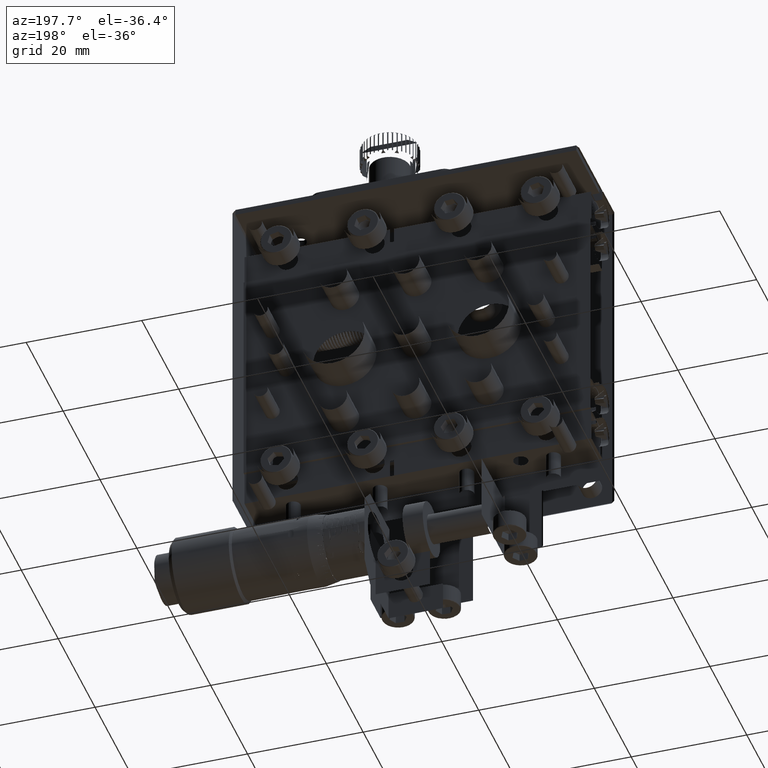
[diagram: clean part render]
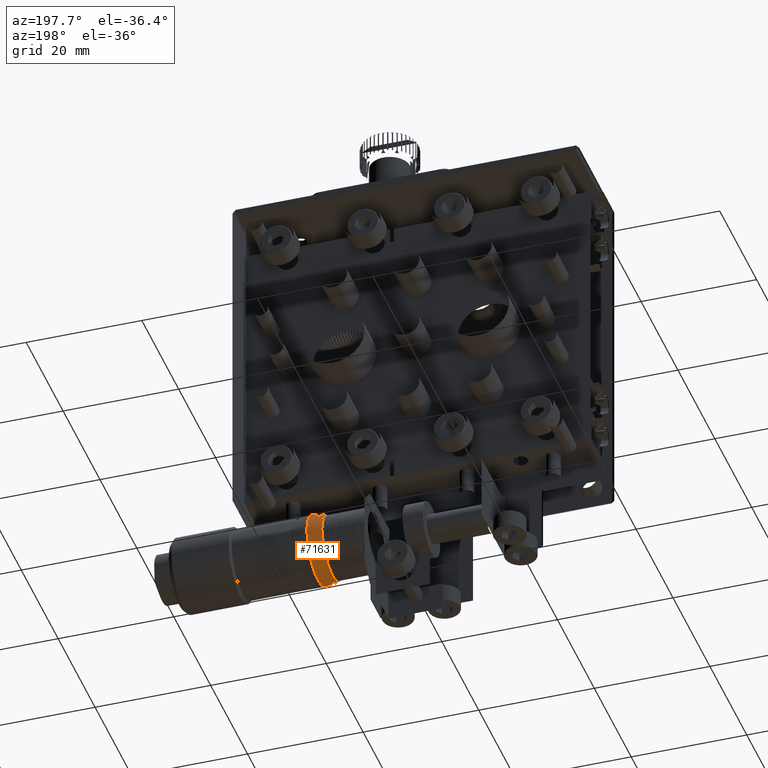
[diagram: same view with one face highlighted and labeled with its STEP entity id]
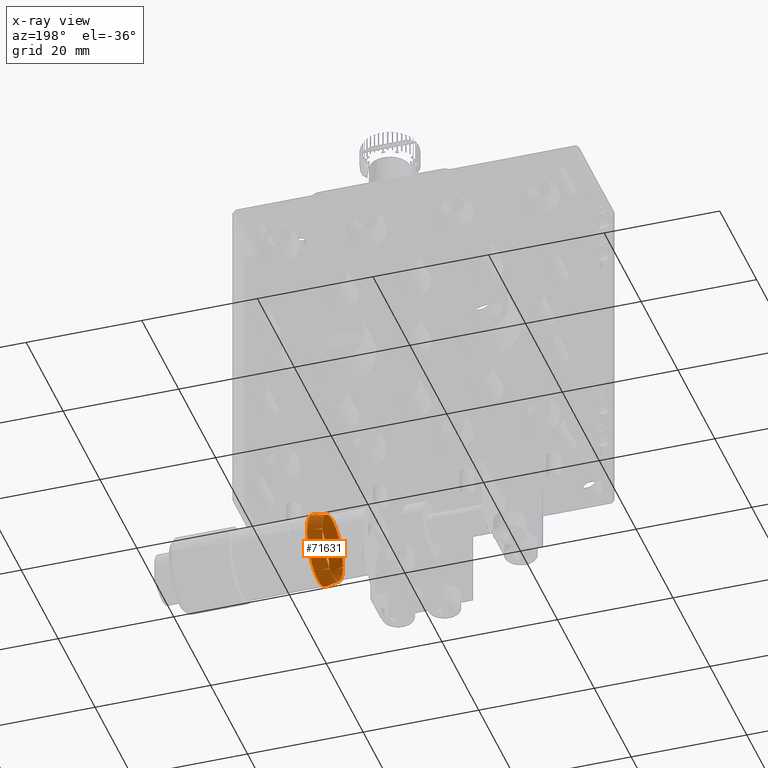
[diagram: x-ray of the same camera — body ghosted, the highlighted face saturated]
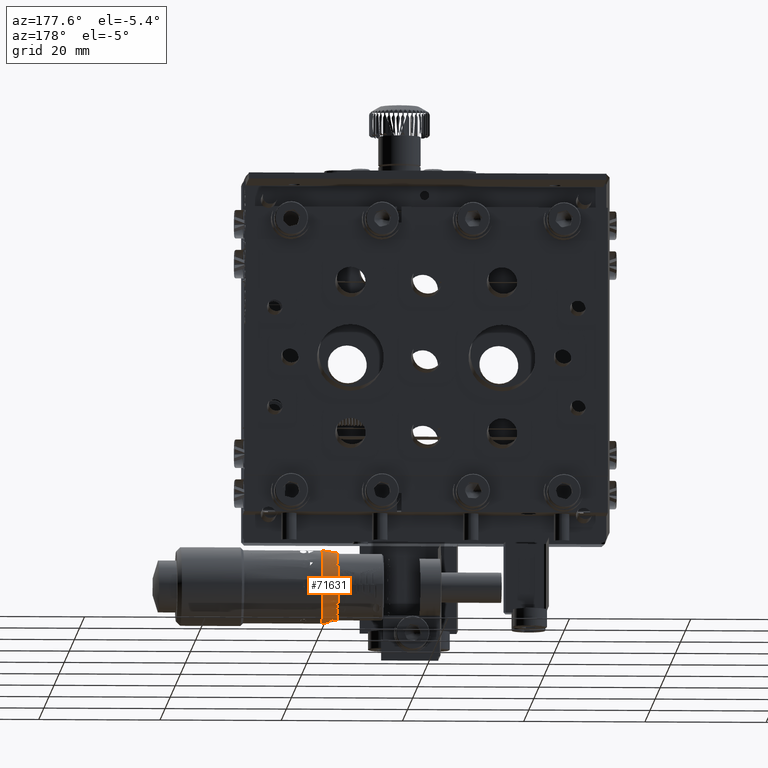
[diagram: same view with one face highlighted and labeled with its STEP entity id]
A machine part, auxiliary view. The second image highlights one B-rep face of the part: STEP entity #71631.
The next image is the same camera in x-ray: the body ghosted, the highlighted face saturated — about 0% of this face is hidden behind the body in this view.
A second angle (auxiliary view) of the same face is appended — the face is thin or edge-on in the first view.
In plain terms, the highlighted conical surface has half-angle 10 deg.
Its self-contained STEP definition (entity closure, byte-faithful):
#111 = EDGE_CURVE ( 'NONE', #68566, #33873, #43818, .T. ) ;
#164 = CARTESIAN_POINT ( 'NONE',  ( 14.74999999999846700, 18.21508305196663713, -35.93520256140385527 ) ) ;
#173 = VERTEX_POINT ( 'NONE', #41881 ) ;
#360 = AXIS2_PLACEMENT_3D ( 'NONE', #41555, #20306, #80649 ) ;
#449 = CARTESIAN_POINT ( 'NONE',  ( 14.75000007204176278, 7.435264117338483913, -38.70298961589746511 ) ) ;
#548 = CARTESIAN_POINT ( 'NONE',  ( 14.74999999999226930, 7.405513986495050105, -37.54686691672696952 ) ) ;
#776 = B_SPLINE_CURVE_WITH_KNOTS ( 'NONE', 3,
 ( #51334, #77860, #63091, #23598 ),
 .UNSPECIFIED., .F., .F.,
 ( 4, 4 ),
 ( 0.000000000000000000, 1.000000000000000000 ),
 .UNSPECIFIED. ) ;
#807 = CARTESIAN_POINT ( 'NONE',  ( 14.75000034906909185, 7.391034015596825490, -38.04999951312858286 ) ) ;
#845 = VERTEX_POINT ( 'NONE', #59813 ) ;
#1005 = B_SPLINE_CURVE_WITH_KNOTS ( 'NONE', 3,
 ( #83814, #10437, #56004, #10003 ),
 .UNSPECIFIED., .F., .F.,
 ( 4, 4 ),
 ( 0.000000000000000000, 1.000000000000000000 ),
 .UNSPECIFIED. ) ;
#1239 = VERTEX_POINT ( 'NONE', #35314 ) ;
#1422 = B_SPLINE_CURVE_WITH_KNOTS ( 'NONE', 3,
 ( #41661, #15632, #81196, #35582 ),
 .UNSPECIFIED., .F., .F.,
 ( 4, 4 ),
 ( 0.000000000000000000, 1.000000000000000000 ),
 .UNSPECIFIED. ) ;
#1548 = CARTESIAN_POINT ( 'NONE',  ( 15.99999981579986219, 18.82937881845542449, -38.00000000001165290 ) ) ;
#1767 = CARTESIAN_POINT ( 'NONE',  ( 14.74999999999859668, 16.57528836316247833, -33.67821879063901491 ) ) ;
#1886 = CARTESIAN_POINT ( 'NONE',  ( 14.75000034906909185, 14.78081817282415145, -43.31899294987736937 ) ) ;
#1961 = CARTESIAN_POINT ( 'NONE',  ( 17.24999999999666400, 18.28640939711611324, -34.95310416151806265 ) ) ;
#1973 = ORIENTED_EDGE ( 'NONE', *, *, #40930, .T. ) ;
#2049 = ORIENTED_EDGE ( 'NONE', *, *, #62639, .T. ) ;
#2072 = CARTESIAN_POINT ( 'NONE',  ( 14.74999999999587708, 13.00000000000000888, -32.39081545175179855 ) ) ;
#2151 = VERTEX_POINT ( 'NONE', #807 ) ;
#2473 = ORIENTED_EDGE ( 'NONE', *, *, #40724, .T. ) ;
#2666 = EDGE_CURVE ( 'NONE', #63785, #44923, #61174, .T. ) ;
#2700 = ORIENTED_EDGE ( 'NONE', *, *, #111, .F. ) ;
#2709 = CARTESIAN_POINT ( 'NONE',  ( 14.74996189062949270, 8.197831248655212733, -35.09186385416991527 ) ) ;
#2835 = CARTESIAN_POINT ( 'NONE',  ( 17.24999999998497202, 13.00000000000001066, -31.94999799999049372 ) ) ;
#3098 = CARTESIAN_POINT ( 'NONE',  ( 14.74999999999846700, 12.64781021298505337, -43.59789621690732986 ) ) ;
#3162 = ORIENTED_EDGE ( 'NONE', *, *, #63716, .T. ) ;
#3263 = CARTESIAN_POINT ( 'NONE',  ( 17.24999999999667111, 13.79194340989183587, -31.94999799999994394 ) ) ;
#3423 = CARTESIAN_POINT ( 'NONE',  ( 14.74998094531475346, 14.73329787970884119, -32.66545765059962037 ) ) ;
#3427 = CARTESIAN_POINT ( 'NONE',  ( 14.74998094531475346, 9.424644372256402391, -33.67813746718947243 ) ) ;
#3496 = CARTESIAN_POINT ( 'NONE',  ( 15.58333357348955772, 14.82624881692185959, -43.45873393851599786 ) ) ;
#3510 = VERTEX_POINT ( 'NONE', #48898 ) ;
#3518 = VERTEX_POINT ( 'NONE', #14631 ) ;
#3527 = B_SPLINE_CURVE_WITH_KNOTS ( 'NONE', 3,
 ( #74363, #33975, #34832, #21393 ),
 .UNSPECIFIED., .F., .F.,
 ( 4, 4 ),
 ( 0.000000000000000000, 1.000000000000000000 ),
 .UNSPECIFIED. ) ;
#3870 = B_SPLINE_CURVE_WITH_KNOTS ( 'NONE', 3,
 ( #82020, #4270, #83312, #30751 ),
 .UNSPECIFIED., .F., .F.,
 ( 4, 4 ),
 ( 0.000000000000000000, 1.000000000000000000 ),
 .UNSPECIFIED. ) ;
#3913 = EDGE_CURVE ( 'NONE', #34320, #25292, #38279, .T. ) ;
#4270 = CARTESIAN_POINT ( 'NONE',  ( 14.74999999999226930, 18.30603533250073056, -39.83018916965245637 ) ) ;
#4274 = CARTESIAN_POINT ( 'NONE',  ( 14.74996189062949270, 9.605612731562127138, -33.52828717034035577 ) ) ;
#4545 = VERTEX_POINT ( 'NONE', #38967 ) ;
#4589 = CARTESIAN_POINT ( 'NONE',  ( 14.74999999999846345, 18.43274830406662090, -36.60510732814166346 ) ) ;
#4746 = ORIENTED_EDGE ( 'NONE', *, *, #14381, .T. ) ;
#4929 = CARTESIAN_POINT ( 'NONE',  ( 14.75000034906908830, 11.31428655272092065, -43.34989434841179445 ) ) ;
#5242 = CARTESIAN_POINT ( 'NONE',  ( 14.74999999999536726, 13.00000000000000888, -43.60918454824628299 ) ) ;
#5254 = CARTESIAN_POINT ( 'NONE',  ( 14.74999999999226930, 8.315813073224266105, -41.09224775551416542 ) ) ;
#5323 = CARTESIAN_POINT ( 'NONE',  ( 14.74998094531475168, 10.61177424954772697, -32.92476193836920828 ) ) ;
#5486 = VERTEX_POINT ( 'NONE', #19119 ) ;
#5628 = CARTESIAN_POINT ( 'NONE',  ( 14.74998094531475523, 7.784818825731837144, -35.93516370215259315 ) ) ;
#5664 = ORIENTED_EDGE ( 'NONE', *, *, #68814, .T. ) ;
#6050 = B_SPLINE_CURVE_WITH_KNOTS ( 'NONE', 3,
 ( #14175, #67118, #79323, #48001 ),
 .UNSPECIFIED., .F., .F.,
 ( 4, 4 ),
 ( 0.000000000000000000, 1.000000000000000000 ),
 .UNSPECIFIED. ) ;
#6073 = ORIENTED_EDGE ( 'NONE', *, *, #21776, .F. ) ;
#6121 = CARTESIAN_POINT ( 'NONE',  ( 15.99999981579985509, 11.19862287843683291, -43.54406871124138689 ) ) ;
#6175 = CARTESIAN_POINT ( 'NONE',  ( 15.99999981579985509, 17.71606653078667293, -34.57357710049527100 ) ) ;
#6297 = VERTEX_POINT ( 'NONE', #31953 ) ;
#6683 = CARTESIAN_POINT ( 'NONE',  ( 14.74998094531475168, 15.38822575045243823, -32.92476193836927223 ) ) ;
#6870 = CARTESIAN_POINT ( 'NONE',  ( 15.58333357348955772, 7.244093596666873580, -38.05002428293710182 ) ) ;
#7078 = B_SPLINE_CURVE_WITH_KNOTS ( 'NONE', 3,
 ( #75163, #32542, #78165, #5628 ),
 .UNSPECIFIED., .F., .F.,
 ( 4, 4 ),
 ( 0.000000000000000000, 1.000000000000000000 ),
 .UNSPECIFIED. ) ;
#7329 = EDGE_CURVE ( 'NONE', #22029, #15821, #19279, .T. ) ;
#7375 = CARTESIAN_POINT ( 'NONE',  ( 17.24999999998497202, 13.00000000000001066, -44.05000200000841915 ) ) ;
#7493 = CARTESIAN_POINT ( 'NONE',  ( 14.75000017571437105, 7.391034056568329014, -37.95000048734773657 ) ) ;
#7690 = CARTESIAN_POINT ( 'NONE',  ( 15.99999981579985153, 17.71606653077294169, -41.42642289952365786 ) ) ;
#7706 = CARTESIAN_POINT ( 'NONE',  ( 14.74998094531475523, 13.35219640455742329, -32.40199845391536115 ) ) ;
#7814 = CARTESIAN_POINT ( 'NONE',  ( 14.74996189062949270, 13.82026015277180697, -32.44614963823739373 ) ) ;
#7916 = CARTESIAN_POINT ( 'NONE',  ( 15.58333308224858271, 18.75590631671078512, -38.05002428293713024 ) ) ;
#7955 = CARTESIAN_POINT ( 'NONE',  ( 14.74999999999226930, 16.76801384963791719, -42.16000901145611834 ) ) ;
#7960 = B_SPLINE_CURVE_WITH_KNOTS ( 'NONE', 3,
 ( #55233, #48276, #7916, #67836 ),
 .UNSPECIFIED., .F., .F.,
 ( 4, 4 ),
 ( 0.000000000000000000, 1.000000000000000000 ),
 .UNSPECIFIED. ) ;
#8087 = CARTESIAN_POINT ( 'NONE',  ( 14.75000007204187469, 7.435264119670162763, -37.29701036564527783 ) ) ;
#8131 = CARTESIAN_POINT ( 'NONE',  ( 14.75000017571437105, 17.50835979294775413, -41.33731791760604324 ) ) ;
#8311 = CARTESIAN_POINT ( 'NONE',  ( 15.16666690133772022, 14.70839277703170112, -43.41977424572694133 ) ) ;
#8789 = CARTESIAN_POINT ( 'NONE',  ( 14.75000007204176455, 18.56473588266153385, -37.29701038410259883 ) ) ;
#8930 = VERTEX_POINT ( 'NONE', #14693 ) ;
#9043 = CARTESIAN_POINT ( 'NONE',  ( 14.74999999999846700, 18.43274829949588778, -39.39489268966018898 ) ) ;
#9200 = CARTESIAN_POINT ( 'NONE',  ( 14.75000007204187469, 7.435264119670162763, -37.29701036564527783 ) ) ;
#9333 = CARTESIAN_POINT ( 'NONE',  ( 17.24999999999666400, 14.58357522386944360, -43.89253664178875880 ) ) ;
#9594 = CARTESIAN_POINT ( 'NONE',  ( 14.74999999999846700, 8.084827175202514482, -40.70213911627718062 ) ) ;
#9776 = CARTESIAN_POINT ( 'NONE',  ( 17.24999999999666755, 17.83798599584275024, -34.28199111505828256 ) ) ;
#9800 = EDGE_CURVE ( 'NONE', #19654, #8930, #27225, .T. ) ;
#9862 = CARTESIAN_POINT ( 'NONE',  ( 14.74998094531475523, 9.994510125545678747, -33.26410576217101323 ) ) ;
#9936 = CARTESIAN_POINT ( 'NONE',  ( 14.74996189062949270, 9.796071725788939588, -33.38991061119345005 ) ) ;
#10003 = CARTESIAN_POINT ( 'NONE',  ( 14.74999999999846523, 16.00543331722155926, -42.73580513504067113 ) ) ;
#10011 = CARTESIAN_POINT ( 'NONE',  ( 15.99999981579985509, 14.80137712154099994, -43.54406871124858469 ) ) ;
#10040 = CARTESIAN_POINT ( 'NONE',  ( 14.74999999999226930, 12.19648038807095958, -43.55499411158145762 ) ) ;
#10077 = CARTESIAN_POINT ( 'NONE',  ( 14.74996189062949270, 10.82432340848335528, -32.82462446500717590 ) ) ;
#10419 = EDGE_CURVE ( 'NONE', #70126, #37014, #76778, .T. ) ;
#10437 = CARTESIAN_POINT ( 'NONE',  ( 14.74999999999226930, 15.61508259399495202, -42.96638161774183118 ) ) ;
#10549 = CARTESIAN_POINT ( 'NONE',  ( 14.74996189062949270, 15.60086693268246627, -33.02470385227625371 ) ) ;
#10728 = ORIENTED_EDGE ( 'NONE', *, *, #30173, .T. ) ;
#11209 = VERTEX_POINT ( 'NONE', #5323 ) ;
#11269 = ORIENTED_EDGE ( 'NONE', *, *, #15996, .T. ) ;
#11280 = CARTESIAN_POINT ( 'NONE',  ( 14.75000017571437105, 17.50835979294775413, -41.33731791760604324 ) ) ;
#11291 = CARTESIAN_POINT ( 'NONE',  ( 14.74998094531475701, 8.911164113030562106, -34.16032752610590251 ) ) ;
#11296 = VERTEX_POINT ( 'NONE', #6175 ) ;
#11335 = ORIENTED_EDGE ( 'NONE', *, *, #41151, .T. ) ;
#11405 = CARTESIAN_POINT ( 'NONE',  ( 14.74999999999846878, 7.784916948033396622, -40.06479743859622999 ) ) ;
#11543 = EDGE_CURVE ( 'NONE', #60128, #6297, #84001, .T. ) ;
#11814 = B_SPLINE_CURVE_WITH_KNOTS ( 'NONE', 3,
 ( #64047, #50146, #51010, #4589 ),
 .UNSPECIFIED., .F., .F.,
 ( 4, 4 ),
 ( 0.000000000000000000, 1.000000000000000000 ),
 .UNSPECIFIED. ) ;
#11893 = CARTESIAN_POINT ( 'NONE',  ( 14.75000017571437283, 14.68571343507120730, -43.34989430929836374 ) ) ;
#12517 = CARTESIAN_POINT ( 'NONE',  ( 14.74999999999846878, 7.784916948033396622, -40.06479743859622999 ) ) ;
#12675 = CARTESIAN_POINT ( 'NONE',  ( 14.75000017571437283, 17.56713774526540206, -34.74358299328631716 ) ) ;
#12873 = CARTESIAN_POINT ( 'NONE',  ( 14.74999999999846345, 18.21508304520078525, -40.06479745568476147 ) ) ;
#12910 = CARTESIAN_POINT ( 'NONE',  ( 14.74999999999846345, 18.43274830406662090, -36.60510732814166346 ) ) ;
#12998 = VERTEX_POINT ( 'NONE', #22687 ) ;
#13010 = ORIENTED_EDGE ( 'NONE', *, *, #24695, .T. ) ;
#13103 = EDGE_CURVE ( 'NONE', #33560, #70126, #26737, .T. ) ;
#13124 = CARTESIAN_POINT ( 'NONE',  ( 15.58333357348955772, 8.372777437438852388, -41.42370739248257649 ) ) ;
#13328 = B_SPLINE_CURVE_WITH_KNOTS ( 'NONE', 3,
 ( #31584, #23376, #30734, #50676 ),
 .UNSPECIFIED., .F., .F.,
 ( 4, 4 ),
 ( 0.000000000000000000, 1.000000000000000000 ),
 .UNSPECIFIED. ) ;
#13592 = CARTESIAN_POINT ( 'NONE',  ( 14.74999999999226930, 7.392835544283752114, -37.74838499048877338 ) ) ;
#13602 = CARTESIAN_POINT ( 'NONE',  ( 14.75000017571437283, 18.60896594343170918, -38.04999951265224212 ) ) ;
#13625 = CARTESIAN_POINT ( 'NONE',  ( 14.74996189062949270, 12.17973984722837066, -32.44614963823737241 ) ) ;
#13691 = CARTESIAN_POINT ( 'NONE',  ( 14.74996189062949270, 7.698225022914335192, -36.15358112785204270 ) ) ;
#13759 = ORIENTED_EDGE ( 'NONE', *, *, #40754, .T. ) ;
#13848 = EDGE_CURVE ( 'NONE', #35416, #81055, #75363, .T. ) ;
#13927 = CARTESIAN_POINT ( 'NONE',  ( 14.75000007204176455, 15.38818081203761956, -43.07514258448528466 ) ) ;
#14046 = VERTEX_POINT ( 'NONE', #11893 ) ;
#14119 = EDGE_CURVE ( 'NONE', #57515, #3510, #80407, .T. ) ;
#14175 = CARTESIAN_POINT ( 'NONE',  ( 15.99999981579986219, 18.82937881845542449, -38.00000000001165290 ) ) ;
#14343 = CARTESIAN_POINT ( 'NONE',  ( 14.74999999999226930, 7.468585436799628496, -38.95239502123535402 ) ) ;
#14381 = EDGE_CURVE ( 'NONE', #76793, #58954, #7960, .T. ) ;
#14631 = CARTESIAN_POINT ( 'NONE',  ( 14.74998094531475701, 8.462167238294396654, -34.70307151364478671 ) ) ;
#14693 = CARTESIAN_POINT ( 'NONE',  ( 14.74999999999847056, 17.08875894762377357, -41.83960023564558384 ) ) ;
#14833 = CARTESIAN_POINT ( 'NONE',  ( 15.58333308224858271, 14.73109694963338789, -43.48965056325123157 ) ) ;
#15250 = B_SPLINE_CURVE_WITH_KNOTS ( 'NONE', 3,
 ( #19206, #13124, #66060, #45663 ),
 .UNSPECIFIED., .F., .F.,
 ( 4, 4 ),
 ( 0.000000000000000000, 1.000000000000000000 ),
 .UNSPECIFIED. ) ;
#15316 = EDGE_CURVE ( 'NONE', #79067, #36524, #79330, .T. ) ;
#15632 = CARTESIAN_POINT ( 'NONE',  ( 15.16666690133772022, 17.62658921207708218, -34.70041956940720951 ) ) ;
#15643 = CARTESIAN_POINT ( 'NONE',  ( 14.75000034906909008, 8.491640174185592471, -41.33731794207385235 ) ) ;
#15780 = ORIENTED_EDGE ( 'NONE', *, *, #59483, .T. ) ;
#15821 = VERTEX_POINT ( 'NONE', #36580 ) ;
#15858 = CARTESIAN_POINT ( 'NONE',  ( 17.24999999998497202, 13.00000000000001066, -44.05000200000841915 ) ) ;
#15870 = ORIENTED_EDGE ( 'NONE', *, *, #81633, .T. ) ;
#15996 = EDGE_CURVE ( 'NONE', #11209, #25472, #34713, .T. ) ;
#16096 = ORIENTED_EDGE ( 'NONE', *, *, #52908, .T. ) ;
#16287 = B_SPLINE_CURVE_WITH_KNOTS ( 'NONE', 3,
 ( #25346, #51815, #46148, #13602 ),
 .UNSPECIFIED., .F., .F.,
 ( 4, 4 ),
 ( 0.000000000000000000, 1.000000000000000000 ),
 .UNSPECIFIED. ) ;
#16870 = CARTESIAN_POINT ( 'NONE',  ( 15.99999981579985509, 14.80137712154099994, -43.54406871124858469 ) ) ;
#16926 = CARTESIAN_POINT ( 'NONE',  ( 14.74998094531475523, 11.94896513401988791, -32.49028228238113059 ) ) ;
#17327 = EDGE_LOOP ( 'NONE', ( #6073, #2700 ) ) ;
#17329 = CARTESIAN_POINT ( 'NONE',  ( 14.74999999999846878, 17.91517282479752637, -35.29786088372290465 ) ) ;
#17348 = CARTESIAN_POINT ( 'NONE',  ( 14.74998094531475523, 7.567149476999892599, -36.60508107329253136 ) ) ;
#17421 = EDGE_CURVE ( 'NONE', #83592, #11209, #64632, .T. ) ;
#17476 = CARTESIAN_POINT ( 'NONE',  ( 15.16666714695820950, 17.56778219710981404, -34.61947858352412766 ) ) ;
#17587 = ORIENTED_EDGE ( 'NONE', *, *, #46001, .T. ) ;
#17690 = ORIENTED_EDGE ( 'NONE', *, *, #17421, .T. ) ;
#17803 = ORIENTED_EDGE ( 'NONE', *, *, #60240, .T. ) ;
#17865 = EDGE_CURVE ( 'NONE', #30941, #11296, #1422, .T. ) ;
#18001 = ORIENTED_EDGE ( 'NONE', *, *, #28605, .T. ) ;
#18420 = CONICAL_SURFACE ( 'NONE', #360, 6.050002000020058723, 0.1745329252023220812 ) ;
#18867 = CARTESIAN_POINT ( 'NONE',  ( 14.74999999999846345, 18.21508304520078525, -40.06479745568476147 ) ) ;
#18993 = CARTESIAN_POINT ( 'NONE',  ( 14.74996189062949270, 11.49012581896080931, -32.59274926450538601 ) ) ;
#19007 = EDGE_CURVE ( 'NONE', #4545, #56715, #58149, .T. ) ;
#19119 = CARTESIAN_POINT ( 'NONE',  ( 14.74998094531475523, 7.784818825731837144, -35.93516370215259315 ) ) ;
#19123 = CARTESIAN_POINT ( 'NONE',  ( 15.99999981579985153, 17.71606653077294169, -41.42642289952365786 ) ) ;
#19180 = ORIENTED_EDGE ( 'NONE', *, *, #50261, .T. ) ;
#19206 = CARTESIAN_POINT ( 'NONE',  ( 15.99999981579985864, 8.283933469213360823, -41.42642289950479295 ) ) ;
#19279 = B_SPLINE_CURVE_WITH_KNOTS ( 'NONE', 3,
 ( #45169, #78215, #5254, #50835 ),
 .UNSPECIFIED., .F., .F.,
 ( 4, 4 ),
 ( 0.000000000000000000, 1.000000000000000000 ),
 .UNSPECIFIED. ) ;
#19602 = ORIENTED_EDGE ( 'NONE', *, *, #25236, .T. ) ;
#19654 = VERTEX_POINT ( 'NONE', #61102 ) ;
#19776 = CARTESIAN_POINT ( 'NONE',  ( 14.74996189062949270, 7.625476160582811858, -36.37747910379799521 ) ) ;
#19890 = ORIENTED_EDGE ( 'NONE', *, *, #13103, .T. ) ;
#20140 = CARTESIAN_POINT ( 'NONE',  ( 14.74996189062949270, 15.17567659151680992, -32.82462446500723274 ) ) ;
#20159 = ORIENTED_EDGE ( 'NONE', *, *, #51533, .T. ) ;
#20306 = DIRECTION ( 'NONE',  ( 1.000000000000000000, 0.000000000000000000, 0.000000000000000000 ) ) ;
#20363 = ORIENTED_EDGE ( 'NONE', *, *, #29845, .T. ) ;
#20382 = CARTESIAN_POINT ( 'NONE',  ( 14.74999999999226930, 14.29783608137027251, -43.46069820191087274 ) ) ;
#20509 = B_SPLINE_CURVE_WITH_KNOTS ( 'NONE', 3,
 ( #10011, #3496, #29981, #76452 ),
 .UNSPECIFIED., .F., .F.,
 ( 4, 4 ),
 ( 0.000000000000000000, 1.000000000000000000 ),
 .UNSPECIFIED. ) ;
#20677 = CARTESIAN_POINT ( 'NONE',  ( 15.58333357348955772, 17.68602963409503914, -41.34276640242749323 ) ) ;
#21084 = CARTESIAN_POINT ( 'NONE',  ( 14.74998729687219523, 12.88252151353724884, -32.39081769165094471 ) ) ;
#21393 = CARTESIAN_POINT ( 'NONE',  ( 15.99999981579985864, 8.283933469213360823, -41.42642289950479295 ) ) ;
#21546 = CARTESIAN_POINT ( 'NONE',  ( 15.58333308224858271, 11.17375120984589465, -43.45873385613323592 ) ) ;
#21576 = EDGE_CURVE ( 'NONE', #35263, #845, #52747, .T. ) ;
#21724 = CARTESIAN_POINT ( 'NONE',  ( 14.74996189062949270, 13.58669624807784260, -32.41664365532995618 ) ) ;
#21749 = CARTESIAN_POINT ( 'NONE',  ( 14.75000017571437461, 11.21918184028976739, -43.31899291105833782 ) ) ;
#21776 = EDGE_CURVE ( 'NONE', #33873, #68566, #52885, .T. ) ;
#21937 = CARTESIAN_POINT ( 'NONE',  ( 17.24999999999666400, 16.04689583848194445, -43.28640939711611679 ) ) ;
#21991 = CARTESIAN_POINT ( 'NONE',  ( 14.75000072042575994, 14.97200925217228473, -43.25497709655421374 ) ) ;
#22029 = VERTEX_POINT ( 'NONE', #9594 ) ;
#22152 = ORIENTED_EDGE ( 'NONE', *, *, #15316, .T. ) ;
#22160 = EDGE_CURVE ( 'NONE', #45695, #5486, #7078, .T. ) ;
#22288 = CARTESIAN_POINT ( 'NONE',  ( 14.75000034906909185, 17.50835982581444839, -34.66268205792620449 ) ) ;
#22687 = CARTESIAN_POINT ( 'NONE',  ( 14.74999999999846700, 10.61181917663924779, -43.07514256511822737 ) ) ;
#22812 = CARTESIAN_POINT ( 'NONE',  ( 17.24999999999666755, 19.05000200000009514, -37.20805659010819255 ) ) ;
#22989 = EDGE_CURVE ( 'NONE', #31136, #79067, #15250, .T. ) ;
#23108 = CARTESIAN_POINT ( 'NONE',  ( 14.74996189062949270, 11.04321163405744599, -32.73796048570635264 ) ) ;
#23181 = CARTESIAN_POINT ( 'NONE',  ( 14.74999999999226930, 16.76801383544929536, -33.83999097569227388 ) ) ;
#23376 = CARTESIAN_POINT ( 'NONE',  ( 14.74999999999226930, 9.619731573652574141, -42.48077992232355626 ) ) ;
#23423 = CARTESIAN_POINT ( 'NONE',  ( 14.74999999999846700, 18.21508305196663713, -35.93520256140385527 ) ) ;
#23532 = CARTESIAN_POINT ( 'NONE',  ( 14.74998094531475701, 8.084734696980222068, -35.29781003290310082 ) ) ;
#23598 = CARTESIAN_POINT ( 'NONE',  ( 14.75000017571437461, 11.21918184028976739, -43.31899291105833782 ) ) ;
#23626 = EDGE_CURVE ( 'NONE', #61622, #46657, #3870, .T. ) ;
#23629 = EDGE_CURVE ( 'NONE', #54397, #4545, #56573, .T. ) ;
#23657 = CARTESIAN_POINT ( 'NONE',  ( 17.24999999999667466, 16.71800888494173520, -42.83798599584275735 ) ) ;
#23853 = ORIENTED_EDGE ( 'NONE', *, *, #83603, .T. ) ;
#24508 = EDGE_CURVE ( 'NONE', #2151, #67285, #79364, .T. ) ;
#24664 = CARTESIAN_POINT ( 'NONE',  ( 14.74999999999846700, 9.424711636897660227, -42.32178120940983490 ) ) ;
#24695 = EDGE_CURVE ( 'NONE', #79076, #57372, #75156, .T. ) ;
#24703 = CARTESIAN_POINT ( 'NONE',  ( 14.74998094531475523, 16.00548987445446514, -33.26410576217109849 ) ) ;
#24750 = ORIENTED_EDGE ( 'NONE', *, *, #24508, .T. ) ;
#24749 = CARTESIAN_POINT ( 'NONE',  ( 14.75000072042575994, 11.70216390160914344, -43.46069832875576822 ) ) ;
#24787 = CARTESIAN_POINT ( 'NONE',  ( 14.74999999999226930, 13.10081177099316285, -43.60918454825188206 ) ) ;
#25102 = VERTEX_POINT ( 'NONE', #30364 ) ;
#25236 = EDGE_CURVE ( 'NONE', #72850, #54950, #79292, .T. ) ;
#25292 = VERTEX_POINT ( 'NONE', #65465 ) ;
#25346 = CARTESIAN_POINT ( 'NONE',  ( 14.74999999999846700, 18.56473586774141893, -38.70298963265116754 ) ) ;
#25369 = VERTEX_POINT ( 'NONE', #55003 ) ;
#25472 = VERTEX_POINT ( 'NONE', #9862 ) ;
#25497 = B_SPLINE_CURVE_WITH_KNOTS ( 'NONE', 3,
 ( #71622, #44263, #57711, #11291 ),
 .UNSPECIFIED., .F., .F.,
 ( 4, 4 ),
 ( 0.000000000000000000, 1.000000000000000000 ),
 .UNSPECIFIED. ) ;
#25677 = CARTESIAN_POINT ( 'NONE',  ( 14.74998094531475168, 10.61177424954772697, -32.92476193836920828 ) ) ;
#25788 = CARTESIAN_POINT ( 'NONE',  ( 14.74998094531475523, 11.94896513401988791, -32.49028228238113059 ) ) ;
#25803 = CARTESIAN_POINT ( 'NONE',  ( 14.75000017571437105, 7.391034056568329014, -37.95000048734773657 ) ) ;
#25969 = ORIENTED_EDGE ( 'NONE', *, *, #23626, .T. ) ;
#26121 = CARTESIAN_POINT ( 'NONE',  ( 14.74999999999226930, 17.68418692677577297, -34.90775224448588432 ) ) ;
#26478 = CARTESIAN_POINT ( 'NONE',  ( 14.74999999999226930, 14.49340901267816584, -43.41048360752630941 ) ) ;
#26737 = B_SPLINE_CURVE_WITH_KNOTS ( 'NONE', 3,
 ( #8131, #54131, #80644, #7690 ),
 .UNSPECIFIED., .F., .F.,
 ( 4, 4 ),
 ( 0.000000000000000000, 1.000000000000000000 ),
 .UNSPECIFIED. ) ;
#26940 = CARTESIAN_POINT ( 'NONE',  ( 14.74999999999226930, 7.506420818189921462, -39.15073503450706482 ) ) ;
#27225 = B_SPLINE_CURVE_WITH_KNOTS ( 'NONE', 3,
 ( #61785, #7955, #35733, #75276 ),
 .UNSPECIFIED., .F., .F.,
 ( 4, 4 ),
 ( 0.000000000000000000, 1.000000000000000000 ),
 .UNSPECIFIED. ) ;
#27361 = CARTESIAN_POINT ( 'NONE',  ( 14.74998094531475346, 14.05103486598028617, -32.49028228238115190 ) ) ;
#27414 = CARTESIAN_POINT ( 'NONE',  ( 14.75000017571437283, 14.68571343507120730, -43.34989430929836374 ) ) ;
#27932 = ORIENTED_EDGE ( 'NONE', *, *, #52488, .T. ) ;
#28303 = CARTESIAN_POINT ( 'NONE',  ( 14.75000007204176278, 7.435264117338483913, -38.70298961589746511 ) ) ;
#28402 = CARTESIAN_POINT ( 'NONE',  ( 14.75000007204176633, 17.08875896954199902, -34.16039976913870646 ) ) ;
#28605 = EDGE_CURVE ( 'NONE', #8930, #33560, #51727, .T. ) ;
#28780 = CARTESIAN_POINT ( 'NONE',  ( 14.75000072042575994, 18.59448613940127970, -37.54686689371735042 ) ) ;
#29134 = CARTESIAN_POINT ( 'NONE',  ( 14.74999999999846878, 17.91517282479752637, -35.29786088372290465 ) ) ;
#29189 = CARTESIAN_POINT ( 'NONE',  ( 14.74998094531475523, 7.567149476999892599, -36.60508107329253136 ) ) ;
#29206 = CARTESIAN_POINT ( 'NONE',  ( 14.74998094531475168, 10.61177424954772697, -32.92476193836920828 ) ) ;
#29213 = CARTESIAN_POINT ( 'NONE',  ( 14.75000034906909008, 18.60896598440323402, -37.95000048687140293 ) ) ;
#29475 = B_SPLINE_CURVE_WITH_KNOTS ( 'NONE', 3,
 ( #52318, #13691, #19776, #50727 ),
 .UNSPECIFIED., .F., .F.,
 ( 4, 4 ),
 ( 0.000000000000000000, 1.000000000000000000 ),
 .UNSPECIFIED. ) ;
#29741 = CARTESIAN_POINT ( 'NONE',  ( 14.74999999999859668, 16.57528836316247833, -33.67821879063901491 ) ) ;
#29845 = EDGE_CURVE ( 'NONE', #69107, #43770, #58882, .T. ) ;
#29929 = VERTEX_POINT ( 'NONE', #21749 ) ;
#29981 = CARTESIAN_POINT ( 'NONE',  ( 15.16666714695820950, 14.80354459610451023, -43.38885759111779095 ) ) ;
#30030 = CARTESIAN_POINT ( 'NONE',  ( 14.74999999999846523, 13.35218976867203011, -43.59789621806135784 ) ) ;
#30173 = EDGE_CURVE ( 'NONE', #33516, #63785, #20509, .T. ) ;
#30190 = ORIENTED_EDGE ( 'NONE', *, *, #39301, .T. ) ;
#30274 = B_SPLINE_CURVE_WITH_KNOTS ( 'NONE', 3,
 ( #45508, #6870, #72031, #33344 ),
 .UNSPECIFIED., .F., .F.,
 ( 4, 4 ),
 ( 0.000000000000000000, 1.000000000000000000 ),
 .UNSPECIFIED. ) ;
#30364 = CARTESIAN_POINT ( 'NONE',  ( 14.74999999999587708, 13.00000000000000888, -32.39081545175179855 ) ) ;
#30734 = CARTESIAN_POINT ( 'NONE',  ( 14.74999999999226930, 9.783085461767624835, -42.59946346872853695 ) ) ;
#30751 = CARTESIAN_POINT ( 'NONE',  ( 14.74999999999846700, 18.43274829949588778, -39.39489268966018898 ) ) ;
#30770 = B_SPLINE_CURVE_WITH_KNOTS ( 'NONE', 3,
 ( #64353, #31366, #10549, #56529 ),
 .UNSPECIFIED., .F., .F.,
 ( 4, 4 ),
 ( 0.000000000000000000, 1.000000000000000000 ),
 .UNSPECIFIED. ) ;
#30936 = B_SPLINE_CURVE_WITH_KNOTS ( 'NONE', 3,
 ( #59207, #52260, #67323, #18867 ),
 .UNSPECIFIED., .F., .F.,
 ( 4, 4 ),
 ( 0.000000000000000000, 1.000000000000000000 ),
 .UNSPECIFIED. ) ;
#30941 = VERTEX_POINT ( 'NONE', #78049 ) ;
#31040 = CARTESIAN_POINT ( 'NONE',  ( 14.74999999999846700, 16.57528834894093706, -42.32178122112517116 ) ) ;
#31078 = ORIENTED_EDGE ( 'NONE', *, *, #19007, .T. ) ;
#31136 = VERTEX_POINT ( 'NONE', #47127 ) ;
#31291 = EDGE_CURVE ( 'NONE', #58125, #61622, #30936, .T. ) ;
#31312 = CARTESIAN_POINT ( 'NONE',  ( 14.74998094531475346, 11.26670212029131868, -32.66545765059957063 ) ) ;
#31366 = CARTESIAN_POINT ( 'NONE',  ( 14.74996189062949270, 15.80716728245983305, -33.13811842931535523 ) ) ;
#31411 = CARTESIAN_POINT ( 'NONE',  ( 15.58333357348955772, 11.26890302359880991, -43.48965064563397220 ) ) ;
#31474 = CARTESIAN_POINT ( 'NONE',  ( 14.74999999999226930, 18.30603532625847052, -36.16981081225019068 ) ) ;
#31584 = CARTESIAN_POINT ( 'NONE',  ( 14.74999999999846700, 9.424711636897660227, -42.32178120940983490 ) ) ;
#31618 = B_SPLINE_CURVE_WITH_KNOTS ( 'NONE', 3,
 ( #29213, #48275, #28780, #8789 ),
 .UNSPECIFIED., .F., .F.,
 ( 4, 4 ),
 ( 0.000000000000000000, 1.000000000000000000 ),
 .UNSPECIFIED. ) ;
#31708 = CARTESIAN_POINT ( 'NONE',  ( 14.74999999999226930, 18.49357918573493720, -39.15073501576996762 ) ) ;
#31953 = CARTESIAN_POINT ( 'NONE',  ( 14.74999999999846700, 12.64781021298505337, -43.59789621690732986 ) ) ;
#32021 = CARTESIAN_POINT ( 'NONE',  ( 14.74999999999846700, 14.05101508131908794, -43.50961405183547726 ) ) ;
#32203 = B_SPLINE_CURVE_WITH_KNOTS ( 'NONE', 3,
 ( #76119, #43080, #17476, #22288 ),
 .UNSPECIFIED., .F., .F.,
 ( 4, 4 ),
 ( 0.000000000000000000, 1.000000000000000000 ),
 .UNSPECIFIED. ) ;
#32309 = CARTESIAN_POINT ( 'NONE',  ( 14.74999999999226930, 16.21691455391989933, -42.59946345775652077 ) ) ;
#32325 = CARTESIAN_POINT ( 'NONE',  ( 14.74996189062949270, 14.95678836594271921, -32.73796048570640949 ) ) ;
#32484 = CARTESIAN_POINT ( 'NONE',  ( 14.74999999999226930, 7.879216007229824292, -40.29808064389564493 ) ) ;
#32542 = CARTESIAN_POINT ( 'NONE',  ( 14.74996189062949270, 7.971448749932544153, -35.50365209064905514 ) ) ;
#32622 = CARTESIAN_POINT ( 'NONE',  ( 14.74996189062949270, 10.39913306731769360, -33.02470385227617555 ) ) ;
#32639 = CARTESIAN_POINT ( 'NONE',  ( 14.74999999999226930, 7.631569040425880246, -39.63815517541689815 ) ) ;
#32847 = B_SPLINE_CURVE_WITH_KNOTS ( 'NONE', 3,
 ( #77324, #31708, #56881, #50369 ),
 .UNSPECIFIED., .F., .F.,
 ( 4, 4 ),
 ( 0.000000000000000000, 1.000000000000000000 ),
 .UNSPECIFIED. ) ;
#33344 = CARTESIAN_POINT ( 'NONE',  ( 14.75000034906909185, 7.391034015596825490, -38.04999951312858286 ) ) ;
#33516 = VERTEX_POINT ( 'NONE', #40584 ) ;
#33560 = VERTEX_POINT ( 'NONE', #46651 ) ;
#33586 = CARTESIAN_POINT ( 'NONE',  ( 15.58333308224858271, 7.244093683289227315, -37.94997571706285555 ) ) ;
#33873 = VERTEX_POINT ( 'NONE', #72226 ) ;
#33968 = EDGE_CURVE ( 'NONE', #15821, #31136, #3527, .T. ) ;
#33975 = CARTESIAN_POINT ( 'NONE',  ( 15.16666690133772022, 8.373410787922955123, -41.29958043059284734 ) ) ;
#34295 = CARTESIAN_POINT ( 'NONE',  ( 14.74998094531475523, 13.35219640455742329, -32.40199845391536115 ) ) ;
#34320 = VERTEX_POINT ( 'NONE', #6121 ) ;
#34529 = ORIENTED_EDGE ( 'NONE', *, *, #57331, .T. ) ;
#34713 = B_SPLINE_CURVE_WITH_KNOTS ( 'NONE', 3,
 ( #25677, #32622, #45201, #52574 ),
 .UNSPECIFIED., .F., .F.,
 ( 4, 4 ),
 ( 0.000000000000000000, 1.000000000000000000 ),
 .UNSPECIFIED. ) ;
#34795 = CARTESIAN_POINT ( 'NONE',  ( 14.75000072042575994, 7.405513860598737175, -38.45313310628268511 ) ) ;
#34802 = VERTEX_POINT ( 'NONE', #17348 ) ;
#34832 = CARTESIAN_POINT ( 'NONE',  ( 15.58333308224858271, 8.313970435983913276, -41.34276635151211821 ) ) ;
#35263 = VERTEX_POINT ( 'NONE', #75257 ) ;
#35314 = CARTESIAN_POINT ( 'NONE',  ( 14.74998094531475346, 9.424644372256402391, -33.67813746718947243 ) ) ;
#35416 = VERTEX_POINT ( 'NONE', #41253 ) ;
#35582 = CARTESIAN_POINT ( 'NONE',  ( 15.99999981579985509, 17.71606653078667293, -34.57357710049527100 ) ) ;
#35733 = CARTESIAN_POINT ( 'NONE',  ( 14.74999999999226930, 16.91520465044049004, -42.02178764874881267 ) ) ;
#35806 = CARTESIAN_POINT ( 'NONE',  ( 17.24999999999666755, 19.05000200000009514, -38.79194340989183587 ) ) ;
#36385 = VERTEX_POINT ( 'NONE', #16926 ) ;
#36498 = CARTESIAN_POINT ( 'NONE',  ( 14.74999999999846700, 9.424711636897660227, -42.32178120940983490 ) ) ;
#36512 = CARTESIAN_POINT ( 'NONE',  ( 14.75000007204176633, 17.91517282702054459, -40.70213913860100519 ) ) ;
#36524 = VERTEX_POINT ( 'NONE', #58542 ) ;
#36574 = EDGE_CURVE ( 'NONE', #39250, #2151, #30274, .T. ) ;
#36580 = CARTESIAN_POINT ( 'NONE',  ( 14.75000017571437283, 8.432862254734637020, -41.25641700671375389 ) ) ;
#36635 = CARTESIAN_POINT ( 'NONE',  ( 15.16666714695820950, 11.29160720959826847, -43.41977428692274543 ) ) ;
#37014 = VERTEX_POINT ( 'NONE', #58008 ) ;
#37438 = CARTESIAN_POINT ( 'NONE',  ( 14.74999999999846700, 18.56473586774141893, -38.70298963265116754 ) ) ;
#37448 = ORIENTED_EDGE ( 'NONE', *, *, #22989, .T. ) ;
#37501 = B_SPLINE_CURVE_WITH_KNOTS ( 'NONE', 3,
 ( #49850, #9936, #4274, #3427 ),
 .UNSPECIFIED., .F., .F.,
 ( 4, 4 ),
 ( 0.000000000000000000, 1.000000000000000000 ),
 .UNSPECIFIED. ) ;
#37533 = CARTESIAN_POINT ( 'NONE',  ( 14.75000072042575994, 8.740310595627725831, -41.65494883059133002 ) ) ;
#37871 = ORIENTED_EDGE ( 'NONE', *, *, #11543, .T. ) ;
#37873 = EDGE_CURVE ( 'NONE', #44923, #71957, #1005, .T. ) ;
#37965 = CARTESIAN_POINT ( 'NONE',  ( 14.75000034906909008, 8.491640174185592471, -41.33731794207385235 ) ) ;
#37987 = CARTESIAN_POINT ( 'NONE',  ( 14.74999999999226930, 18.36843095957415173, -36.36184482458317291 ) ) ;
#38279 = B_SPLINE_CURVE_WITH_KNOTS ( 'NONE', 3,
 ( #50927, #31411, #36635, #4929 ),
 .UNSPECIFIED., .F., .F.,
 ( 4, 4 ),
 ( 0.000000000000000000, 1.000000000000000000 ),
 .UNSPECIFIED. ) ;
#38365 = CARTESIAN_POINT ( 'NONE',  ( 14.75000072042575994, 17.38839583867384064, -34.50063052264090402 ) ) ;
#38731 = CARTESIAN_POINT ( 'NONE',  ( 14.74999999999226930, 17.79237920339219770, -35.07823599218672683 ) ) ;
#38753 = CARTESIAN_POINT ( 'NONE',  ( 14.74996189062949270, 8.750246414213050272, -34.33152960770203777 ) ) ;
#38967 = CARTESIAN_POINT ( 'NONE',  ( 14.74998094531475346, 14.05103486598028617, -32.49028228238115190 ) ) ;
#39082 = B_SPLINE_CURVE_WITH_KNOTS ( 'NONE', 3,
 ( #78489, #51970, #18993, #58913 ),
 .UNSPECIFIED., .F., .F.,
 ( 4, 4 ),
 ( 0.000000000000000000, 1.000000000000000000 ),
 .UNSPECIFIED. ) ;
#39154 = ORIENTED_EDGE ( 'NONE', *, *, #14119, .T. ) ;
#39250 = VERTEX_POINT ( 'NONE', #44166 ) ;
#39264 = CARTESIAN_POINT ( 'NONE',  ( 15.99999981579985864, 7.170621181544593270, -37.99999999998832578 ) ) ;
#39301 = EDGE_CURVE ( 'NONE', #66398, #25369, #13328, .T. ) ;
#40190 = CARTESIAN_POINT ( 'NONE',  ( 14.74998094531475523, 12.64780359544275790, -32.40199845391534694 ) ) ;
#40584 = CARTESIAN_POINT ( 'NONE',  ( 15.99999981579985509, 14.80137712154099994, -43.54406871124858469 ) ) ;
#40724 = EDGE_CURVE ( 'NONE', #12998, #29929, #776, .T. ) ;
#40754 = EDGE_CURVE ( 'NONE', #173, #3518, #75424, .T. ) ;
#40930 = EDGE_CURVE ( 'NONE', #14046, #33516, #77414, .T. ) ;
#41151 = EDGE_CURVE ( 'NONE', #36385, #83592, #39082, .T. ) ;
#41197 = B_SPLINE_CURVE_WITH_KNOTS ( 'NONE', 3,
 ( #46676, #21084, #47112, #40190 ),
 .UNSPECIFIED., .F., .F.,
 ( 4, 4 ),
 ( 0.000000000000000000, 1.000000000000000000 ),
 .UNSPECIFIED. ) ;
#41253 = CARTESIAN_POINT ( 'NONE',  ( 14.75000034906909185, 17.50835982581444839, -34.66268205792620449 ) ) ;
#41298 = CARTESIAN_POINT ( 'NONE',  ( 14.75000034906909185, 7.391034015596825490, -38.04999951312858286 ) ) ;
#41299 = B_SPLINE_CURVE_WITH_KNOTS ( 'NONE', 3,
 ( #52005, #51160, #44217, #44641 ),
 .UNSPECIFIED., .F., .F.,
 ( 4, 4 ),
 ( 0.000000000000000000, 1.000000000000000000 ),
 .UNSPECIFIED. ) ;
#41555 = CARTESIAN_POINT ( 'NONE',  ( 17.24999999993315214, 13.00000000000000888, -38.00000000000001421 ) ) ;
#41661 = CARTESIAN_POINT ( 'NONE',  ( 14.75000017571437283, 17.56713774526540206, -34.74358299328631716 ) ) ;
#41669 = CARTESIAN_POINT ( 'NONE',  ( 14.74999999999847056, 7.567251695933403077, -39.39489267185841470 ) ) ;
#41735 = B_SPLINE_CURVE_WITH_KNOTS ( 'NONE', 3,
 ( #7706, #59807, #80661, #2072 ),
 .UNSPECIFIED., .F., .F.,
 ( 4, 4 ),
 ( 0.000000000000000000, 1.000000000000000000 ),
 .UNSPECIFIED. ) ;
#41881 = CARTESIAN_POINT ( 'NONE',  ( 14.74998094531475701, 8.911164113030562106, -34.16032752610590251 ) ) ;
#41916 = ORIENTED_EDGE ( 'NONE', *, *, #66247, .T. ) ;
#42058 = CARTESIAN_POINT ( 'NONE',  ( 14.74998094531475346, 14.73329787970884119, -32.66545765059962037 ) ) ;
#42268 = CARTESIAN_POINT ( 'NONE',  ( 14.75000007204176278, 7.435264117338483913, -38.70298961589746511 ) ) ;
#42275 = ORIENTED_EDGE ( 'NONE', *, *, #72964, .T. ) ;
#42384 = ORIENTED_EDGE ( 'NONE', *, *, #9800, .T. ) ;
#42688 = CARTESIAN_POINT ( 'NONE',  ( 14.74999999999859668, 16.57528836316247833, -33.67821879063901491 ) ) ;
#43080 = CARTESIAN_POINT ( 'NONE',  ( 15.58333357348955772, 17.62722256256118314, -34.57629260751748035 ) ) ;
#43214 = ORIENTED_EDGE ( 'NONE', *, *, #51693, .T. ) ;
#43596 = CARTESIAN_POINT ( 'NONE',  ( 17.24999999999666400, 18.28640939711611324, -41.04689583848195866 ) ) ;
#43770 = VERTEX_POINT ( 'NONE', #24703 ) ;
#43818 = B_SPLINE_CURVE_WITH_KNOTS ( 'NONE', 3,
 ( #15858, #61426, #9333, #21937, #23657, #76212, #43596, #56615, #35806, #22812, #61857, #1961, #9776, #62301, #76642, #48390, #3263, #2835 ),
 .UNSPECIFIED., .F., .F.,
 ( 4, 2, 2, 2, 2, 2, 2, 2, 4 ),
 ( 0.000000000000000000, 0.1249999999999998335, 0.2499999999999998890, 0.3749999999999999445, 0.5000000000000000000, 0.6250000000000000000, 0.7500000000000001110, 0.8750000000000001110, 1.000000000000000000 ),
 .UNSPECIFIED. ) ;
#43842 = CARTESIAN_POINT ( 'NONE',  ( 14.74999999999226930, 9.084795363276732871, -42.02178766210248995 ) ) ;
#43852 = ORIENTED_EDGE ( 'NONE', *, *, #65769, .T. ) ;
#43860 = CARTESIAN_POINT ( 'NONE',  ( 14.75000072042575994, 17.79237931876918211, -40.92176406319811122 ) ) ;
#44166 = CARTESIAN_POINT ( 'NONE',  ( 15.99999981579985864, 7.170621181544593270, -37.99999999998832578 ) ) ;
#44217 = CARTESIAN_POINT ( 'NONE',  ( 14.74999999999226930, 10.38491742294402087, -42.96638162666115335 ) ) ;
#44263 = CARTESIAN_POINT ( 'NONE',  ( 14.74996189062949270, 9.243538247078468828, -33.82782123370612481 ) ) ;
#44444 = CARTESIAN_POINT ( 'NONE',  ( 14.75000007204176633, 17.08875896954199902, -34.16039976913870646 ) ) ;
#44641 = CARTESIAN_POINT ( 'NONE',  ( 14.74999999999846700, 10.61181917663924779, -43.07514256511822737 ) ) ;
#44643 = FACE_OUTER_BOUND ( 'NONE', #17327, .T. ) ;
#44799 = CARTESIAN_POINT ( 'NONE',  ( 14.74999999999226930, 7.693964673741560567, -39.83018918774988748 ) ) ;
#44923 = VERTEX_POINT ( 'NONE', #13927 ) ;
#45169 = CARTESIAN_POINT ( 'NONE',  ( 14.74999999999846700, 8.084827175202514482, -40.70213911627718062 ) ) ;
#45201 = CARTESIAN_POINT ( 'NONE',  ( 14.74996189062949270, 10.19283271754031972, -33.13811842931527707 ) ) ;
#45298 = CARTESIAN_POINT ( 'NONE',  ( 14.75000007204176278, 8.911241030458038281, -41.83960023086135749 ) ) ;
#45437 = CARTESIAN_POINT ( 'NONE',  ( 14.75000007204176633, 11.94898489813664533, -43.50961406084816474 ) ) ;
#45472 = VERTEX_POINT ( 'NONE', #65387 ) ;
#45481 = CARTESIAN_POINT ( 'NONE',  ( 14.74999999999226930, 7.965187876060157102, -40.48078016419985659 ) ) ;
#45508 = CARTESIAN_POINT ( 'NONE',  ( 15.99999981579985864, 7.170621181544593270, -37.99999999998832578 ) ) ;
#45591 = CARTESIAN_POINT ( 'NONE',  ( 14.74999999999226930, 13.80351963087561096, -43.55499410884086586 ) ) ;
#45663 = CARTESIAN_POINT ( 'NONE',  ( 14.75000034906909008, 8.491640174185592471, -41.33731794207385235 ) ) ;
#45695 = VERTEX_POINT ( 'NONE', #53199 ) ;
#46001 = EDGE_CURVE ( 'NONE', #71957, #19654, #62279, .T. ) ;
#46011 = CARTESIAN_POINT ( 'NONE',  ( 14.74999999999846700, 14.05101508131908794, -43.50961405183547726 ) ) ;
#46148 = CARTESIAN_POINT ( 'NONE',  ( 14.74999999999226930, 18.60716445571626210, -38.25161500951121241 ) ) ;
#46505 = CARTESIAN_POINT ( 'NONE',  ( 14.74996189062949270, 8.600183890399968334, -34.51292403857044633 ) ) ;
#46651 = CARTESIAN_POINT ( 'NONE',  ( 14.75000017571437105, 17.50835979294775413, -41.33731791760604324 ) ) ;
#46657 = VERTEX_POINT ( 'NONE', #9043 ) ;
#46676 = CARTESIAN_POINT ( 'NONE',  ( 14.74999999999587708, 13.00000000000000888, -32.39081545175179855 ) ) ;
#46790 = VERTEX_POINT ( 'NONE', #73211 ) ;
#47112 = CARTESIAN_POINT ( 'NONE',  ( 14.74997459375084397, 12.76504319841448698, -32.39451184076219903 ) ) ;
#47127 = CARTESIAN_POINT ( 'NONE',  ( 15.99999981579985864, 8.283933469213360823, -41.42642289950479295 ) ) ;
#47134 = CARTESIAN_POINT ( 'NONE',  ( 15.16666714695820950, 17.62658924712502539, -41.29958045603871852 ) ) ;
#47268 = ORIENTED_EDGE ( 'NONE', *, *, #31291, .T. ) ;
#48001 = CARTESIAN_POINT ( 'NONE',  ( 14.75000034906909008, 18.60896598440323402, -37.95000048687140293 ) ) ;
#48275 = CARTESIAN_POINT ( 'NONE',  ( 14.75000072042575994, 18.60716458264553808, -37.74838497841360407 ) ) ;
#48276 = CARTESIAN_POINT ( 'NONE',  ( 15.16666690133772022, 18.68243401441745632, -38.05002426461770426 ) ) ;
#48390 = CARTESIAN_POINT ( 'NONE',  ( 17.24999999999667111, 14.58357522386944538, -32.10746335821128383 ) ) ;
#48447 = CARTESIAN_POINT ( 'NONE',  ( 14.75000072042575994, 15.15974648534931113, -43.18064666764524162 ) ) ;
#48898 = CARTESIAN_POINT ( 'NONE',  ( 14.75000017571437105, 7.391034056568329014, -37.95000048734773657 ) ) ;
#49700 = ORIENTED_EDGE ( 'NONE', *, *, #68306, .T. ) ;
#49845 = CARTESIAN_POINT ( 'NONE',  ( 14.74996189062949270, 14.50987418103935767, -32.59274926450542864 ) ) ;
#49850 = CARTESIAN_POINT ( 'NONE',  ( 14.74998094531475523, 9.994510125545678747, -33.26410576217101323 ) ) ;
#49876 = CARTESIAN_POINT ( 'NONE',  ( 14.74999999999226930, 18.03481212393987576, -35.51921983580020736 ) ) ;
#49951 = CARTESIAN_POINT ( 'NONE',  ( 14.75000072042575994, 17.68418703656130120, -41.09224782035229850 ) ) ;
#50089 = VERTEX_POINT ( 'NONE', #72075 ) ;
#50146 = CARTESIAN_POINT ( 'NONE',  ( 14.74999999999226930, 18.53141456320039637, -37.04760497876470282 ) ) ;
#50261 = EDGE_CURVE ( 'NONE', #29929, #34320, #73371, .T. ) ;
#50369 = CARTESIAN_POINT ( 'NONE',  ( 14.74999999999846700, 18.56473586774141893, -38.70298963265116754 ) ) ;
#50676 = CARTESIAN_POINT ( 'NONE',  ( 14.74999999999846523, 9.994566667260381010, -42.73580512519259145 ) ) ;
#50727 = CARTESIAN_POINT ( 'NONE',  ( 14.74998094531475523, 7.567149476999892599, -36.60508107329253136 ) ) ;
#50835 = CARTESIAN_POINT ( 'NONE',  ( 14.75000017571437283, 8.432862254734637020, -41.25641700671375389 ) ) ;
#50853 = EDGE_CURVE ( 'NONE', #25102, #83589, #41197, .T. ) ;
#50927 = CARTESIAN_POINT ( 'NONE',  ( 15.99999981579985509, 11.19862287843683291, -43.54406871124138689 ) ) ;
#50994 = CARTESIAN_POINT ( 'NONE',  ( 14.74999999999846345, 18.43274830406662090, -36.60510732814166346 ) ) ;
#51010 = CARTESIAN_POINT ( 'NONE',  ( 14.74999999999226930, 18.49357918181010518, -36.84926496549299912 ) ) ;
#51154 = B_SPLINE_CURVE_WITH_KNOTS ( 'NONE', 3,
 ( #29189, #61721, #60854, #9200 ),
 .UNSPECIFIED., .F., .F.,
 ( 4, 4 ),
 ( 0.000000000000000000, 1.000000000000000000 ),
 .UNSPECIFIED. ) ;
#51160 = CARTESIAN_POINT ( 'NONE',  ( 14.74999999999226930, 10.20797663638638397, -42.86910760648139274 ) ) ;
#51216 = CARTESIAN_POINT ( 'NONE',  ( 14.75000007204176633, 11.94898489813664533, -43.50961406084816474 ) ) ;
#51334 = CARTESIAN_POINT ( 'NONE',  ( 14.74999999999846700, 10.61181917663924779, -43.07514256511822737 ) ) ;
#51365 = EDGE_CURVE ( 'NONE', #83589, #36385, #70136, .T. ) ;
#51529 = CARTESIAN_POINT ( 'NONE',  ( 14.74999999999226930, 12.79837648496607194, -43.60646611212607837 ) ) ;
#51533 = EDGE_CURVE ( 'NONE', #43770, #58582, #30770, .T. ) ;
#51629 = CARTESIAN_POINT ( 'NONE',  ( 14.75000034906908830, 11.31428655272092065, -43.34989434841179445 ) ) ;
#51632 = B_SPLINE_CURVE_WITH_KNOTS ( 'NONE', 3,
 ( #449, #14343, #26940, #41669 ),
 .UNSPECIFIED., .F., .F.,
 ( 4, 4 ),
 ( 0.000000000000000000, 1.000000000000000000 ),
 .UNSPECIFIED. ) ;
#51693 = EDGE_CURVE ( 'NONE', #54950, #30941, #80525, .T. ) ;
#51727 = B_SPLINE_CURVE_WITH_KNOTS ( 'NONE', 3,
 ( #76864, #82526, #70759, #11280 ),
 .UNSPECIFIED., .F., .F.,
 ( 4, 4 ),
 ( 0.000000000000000000, 1.000000000000000000 ),
 .UNSPECIFIED. ) ;
#51815 = CARTESIAN_POINT ( 'NONE',  ( 14.74999999999226930, 18.59448601350496588, -38.45313308327301627 ) ) ;
#51970 = CARTESIAN_POINT ( 'NONE',  ( 14.74996189062949270, 11.71814992225682772, -32.53420262566698540 ) ) ;
#52005 = CARTESIAN_POINT ( 'NONE',  ( 14.74999999999846523, 9.994566667260381010, -42.73580512519259145 ) ) ;
#52089 = B_SPLINE_CURVE_WITH_KNOTS ( 'NONE', 3,
 ( #63847, #49951, #43860, #36512 ),
 .UNSPECIFIED., .F., .F.,
 ( 4, 4 ),
 ( 0.000000000000000000, 1.000000000000000000 ),
 .UNSPECIFIED. ) ;
#52260 = CARTESIAN_POINT ( 'NONE',  ( 14.74999999999226930, 18.03481213240111813, -40.48078014702749527 ) ) ;
#52318 = CARTESIAN_POINT ( 'NONE',  ( 14.74998094531475523, 7.784818825731837144, -35.93516370215259315 ) ) ;
#52488 = EDGE_CURVE ( 'NONE', #3510, #39250, #54517, .T. ) ;
#52574 = CARTESIAN_POINT ( 'NONE',  ( 14.74998094531475523, 9.994510125545678747, -33.26410576217101323 ) ) ;
#52691 = CARTESIAN_POINT ( 'NONE',  ( 14.74996189062949270, 12.41330375192234037, -32.41664365532993486 ) ) ;
#52747 = B_SPLINE_CURVE_WITH_KNOTS ( 'NONE', 3,
 ( #72592, #32639, #44799, #11405 ),
 .UNSPECIFIED., .F., .F.,
 ( 4, 4 ),
 ( 0.000000000000000000, 1.000000000000000000 ),
 .UNSPECIFIED. ) ;
#52885 = CIRCLE ( 'NONE', #69521, 6.050002000000081814 ) ;
#52908 = EDGE_CURVE ( 'NONE', #46657, #57836, #32847, .T. ) ;
#53199 = CARTESIAN_POINT ( 'NONE',  ( 14.74998094531475701, 8.084734696980222068, -35.29781003290310082 ) ) ;
#53380 = CARTESIAN_POINT ( 'NONE',  ( 14.74999999999846523, 13.35218976867203011, -43.59789621806135784 ) ) ;
#53641 = CARTESIAN_POINT ( 'NONE',  ( 15.99999981579985153, 17.71606653077294169, -41.42642289952365786 ) ) ;
#53773 = B_SPLINE_CURVE_WITH_KNOTS ( 'NONE', 3,
 ( #12517, #32484, #45481, #80210 ),
 .UNSPECIFIED., .F., .F.,
 ( 4, 4 ),
 ( 0.000000000000000000, 1.000000000000000000 ),
 .UNSPECIFIED. ) ;
#53895 = ORIENTED_EDGE ( 'NONE', *, *, #2666, .T. ) ;
#54131 = CARTESIAN_POINT ( 'NONE',  ( 15.16666690133772022, 17.56778216207891319, -41.38052139100654614 ) ) ;
#54285 = CARTESIAN_POINT ( 'NONE',  ( 14.74998094531475523, 16.00548987445446514, -33.26410576217109849 ) ) ;
#54397 = VERTEX_POINT ( 'NONE', #42058 ) ;
#54517 = B_SPLINE_CURVE_WITH_KNOTS ( 'NONE', 3,
 ( #25803, #79638, #33586, #39264 ),
 .UNSPECIFIED., .F., .F.,
 ( 4, 4 ),
 ( 0.000000000000000000, 1.000000000000000000 ),
 .UNSPECIFIED. ) ;
#54527 = CARTESIAN_POINT ( 'NONE',  ( 14.75000017571437461, 11.21918184028976739, -43.31899291105833782 ) ) ;
#54950 = VERTEX_POINT ( 'NONE', #29134 ) ;
#55003 = CARTESIAN_POINT ( 'NONE',  ( 14.74999999999846523, 9.994566667260381010, -42.73580512519259145 ) ) ;
#55050 = CARTESIAN_POINT ( 'NONE',  ( 14.74998094531475168, 15.38822575045243823, -32.92476193836927223 ) ) ;
#55233 = CARTESIAN_POINT ( 'NONE',  ( 14.75000017571437283, 18.60896594343170918, -38.04999951265224212 ) ) ;
#56004 = CARTESIAN_POINT ( 'NONE',  ( 14.74999999999226930, 15.79202338022081520, -42.86910759695856399 ) ) ;
#56451 = CARTESIAN_POINT ( 'NONE',  ( 14.74999999999226930, 12.39680472597334315, -43.58030096032921108 ) ) ;
#56529 = CARTESIAN_POINT ( 'NONE',  ( 14.74998094531475168, 15.38822575045243823, -32.92476193836927223 ) ) ;
#56573 = B_SPLINE_CURVE_WITH_KNOTS ( 'NONE', 3,
 ( #3423, #49845, #75079, #75519 ),
 .UNSPECIFIED., .F., .F.,
 ( 4, 4 ),
 ( 0.000000000000000000, 1.000000000000000000 ),
 .UNSPECIFIED. ) ;
#56615 = CARTESIAN_POINT ( 'NONE',  ( 17.24999999999666400, 18.89253664178875525, -39.58357522386945959 ) ) ;
#56715 = VERTEX_POINT ( 'NONE', #78791 ) ;
#56836 = B_SPLINE_CURVE_WITH_KNOTS ( 'NONE', 3,
 ( #76508, #76079, #2709, #23532 ),
 .UNSPECIFIED., .F., .F.,
 ( 4, 4 ),
 ( 0.000000000000000000, 1.000000000000000000 ),
 .UNSPECIFIED. ) ;
#56881 = CARTESIAN_POINT ( 'NONE',  ( 14.74999999999226930, 18.53141456644874552, -38.95239500236921515 ) ) ;
#57229 = B_SPLINE_CURVE_WITH_KNOTS ( 'NONE', 3,
 ( #5242, #24787, #83008, #30030 ),
 .UNSPECIFIED., .F., .F.,
 ( 4, 4 ),
 ( 0.000000000000000000, 1.000000000000000000 ),
 .UNSPECIFIED. ) ;
#57299 = CARTESIAN_POINT ( 'NONE',  ( 14.75000007204176278, 8.911241030458038281, -41.83960023086135749 ) ) ;
#57331 = EDGE_CURVE ( 'NONE', #6297, #45472, #81898, .T. ) ;
#57372 = VERTEX_POINT ( 'NONE', #32021 ) ;
#57515 = VERTEX_POINT ( 'NONE', #8087 ) ;
#57626 = CARTESIAN_POINT ( 'NONE',  ( 14.74999999999226930, 12.89918823538397952, -43.60918454825188206 ) ) ;
#57711 = CARTESIAN_POINT ( 'NONE',  ( 14.74996189062949270, 9.071924260515860539, -33.98897749396093104 ) ) ;
#57817 = EDGE_CURVE ( 'NONE', #11296, #35416, #32203, .T. ) ;
#57836 = VERTEX_POINT ( 'NONE', #37438 ) ;
#57860 = ORIENTED_EDGE ( 'NONE', *, *, #51365, .T. ) ;
#57899 = CARTESIAN_POINT ( 'NONE',  ( 14.75000072042575994, 8.611604161326203766, -41.49936947735914572 ) ) ;
#58008 = CARTESIAN_POINT ( 'NONE',  ( 14.75000034906909185, 17.56713777869200399, -41.25641703041083730 ) ) ;
#58125 = VERTEX_POINT ( 'NONE', #68623 ) ;
#58149 = B_SPLINE_CURVE_WITH_KNOTS ( 'NONE', 3,
 ( #27361, #7814, #21724, #34295 ),
 .UNSPECIFIED., .F., .F.,
 ( 4, 4 ),
 ( 0.000000000000000000, 1.000000000000000000 ),
 .UNSPECIFIED. ) ;
#58542 = CARTESIAN_POINT ( 'NONE',  ( 14.75000007204176278, 8.911241030458038281, -41.83960023086135749 ) ) ;
#58582 = VERTEX_POINT ( 'NONE', #55050 ) ;
#58767 = CARTESIAN_POINT ( 'NONE',  ( 14.74999999999226930, 16.38026844163015383, -42.48077991079438931 ) ) ;
#58782 = CARTESIAN_POINT ( 'NONE',  ( 14.74998094531475346, 14.73329787970884119, -32.66545765059962037 ) ) ;
#58882 = B_SPLINE_CURVE_WITH_KNOTS ( 'NONE', 3,
 ( #1767, #67312, #81233, #54285 ),
 .UNSPECIFIED., .F., .F.,
 ( 4, 4 ),
 ( 0.000000000000000000, 1.000000000000000000 ),
 .UNSPECIFIED. ) ;
#58907 = CARTESIAN_POINT ( 'NONE',  ( 14.74999999999536726, 13.00000000000000888, -43.60918454824628299 ) ) ;
#58913 = CARTESIAN_POINT ( 'NONE',  ( 14.74998094531475346, 11.26670212029131868, -32.66545765059957063 ) ) ;
#58954 = VERTEX_POINT ( 'NONE', #1548 ) ;
#59207 = CARTESIAN_POINT ( 'NONE',  ( 14.75000007204176633, 17.91517282702054459, -40.70213913860100519 ) ) ;
#59483 = EDGE_CURVE ( 'NONE', #25292, #60128, #68161, .T. ) ;
#59807 = CARTESIAN_POINT ( 'NONE',  ( 14.74997459375084397, 13.23495680158564269, -32.39451184076220613 ) ) ;
#59813 = CARTESIAN_POINT ( 'NONE',  ( 14.74999999999846878, 7.784916948033396622, -40.06479743859622999 ) ) ;
#60022 = CARTESIAN_POINT ( 'NONE',  ( 14.75000007204187469, 7.435264119670162763, -37.29701036564527783 ) ) ;
#60128 = VERTEX_POINT ( 'NONE', #45437 ) ;
#60240 = EDGE_CURVE ( 'NONE', #58954, #46790, #6050, .T. ) ;
#60854 = CARTESIAN_POINT ( 'NONE',  ( 14.74998777716107057, 7.470823774436706088, -37.03108925917824479 ) ) ;
#61102 = CARTESIAN_POINT ( 'NONE',  ( 14.74999999999846700, 16.57528834894093706, -42.32178122112517116 ) ) ;
#61174 = B_SPLINE_CURVE_WITH_KNOTS ( 'NONE', 3,
 ( #81475, #21991, #48447, #74973 ),
 .UNSPECIFIED., .F., .F.,
 ( 4, 4 ),
 ( 0.000000000000000000, 1.000000000000000000 ),
 .UNSPECIFIED. ) ;
#61276 = ORIENTED_EDGE ( 'NONE', *, *, #23629, .T. ) ;
#61282 = ORIENTED_EDGE ( 'NONE', *, *, #77810, .T. ) ;
#61426 = CARTESIAN_POINT ( 'NONE',  ( 17.24999999999666400, 13.79194340989183232, -44.05000200000009158 ) ) ;
#61622 = VERTEX_POINT ( 'NONE', #12873 ) ;
#61721 = CARTESIAN_POINT ( 'NONE',  ( 14.74997483389528163, 7.512756082489726595, -36.81648564547820257 ) ) ;
#61785 = CARTESIAN_POINT ( 'NONE',  ( 14.74999999999846700, 16.57528834894093706, -42.32178122112517116 ) ) ;
#61807 = CARTESIAN_POINT ( 'NONE',  ( 14.74999999999226930, 16.91520463672330621, -33.97821233789755979 ) ) ;
#61857 = CARTESIAN_POINT ( 'NONE',  ( 17.24999999999666400, 18.89253664178875169, -36.41642477613057594 ) ) ;
#62279 = B_SPLINE_CURVE_WITH_KNOTS ( 'NONE', 3,
 ( #84861, #32309, #58767, #31040 ),
 .UNSPECIFIED., .F., .F.,
 ( 4, 4 ),
 ( 0.000000000000000000, 1.000000000000000000 ),
 .UNSPECIFIED. ) ;
#62301 = CARTESIAN_POINT ( 'NONE',  ( 17.24999999999667466, 16.71800888494173520, -33.16201400415727818 ) ) ;
#62346 = CARTESIAN_POINT ( 'NONE',  ( 14.75000034906909185, 17.56713777869200399, -41.25641703041083730 ) ) ;
#62639 = EDGE_CURVE ( 'NONE', #1239, #173, #25497, .T. ) ;
#62681 = ORIENTED_EDGE ( 'NONE', *, *, #79013, .T. ) ;
#63012 = CARTESIAN_POINT ( 'NONE',  ( 14.74998094531475523, 12.64780359544275790, -32.40199845391534694 ) ) ;
#63091 = CARTESIAN_POINT ( 'NONE',  ( 14.74999999999226930, 11.02799079853520681, -43.25497697956873822 ) ) ;
#63157 = ORIENTED_EDGE ( 'NONE', *, *, #22160, .T. ) ;
#63251 = ORIENTED_EDGE ( 'NONE', *, *, #64342, .T. ) ;
#63450 = CARTESIAN_POINT ( 'NONE',  ( 14.74998094531475346, 11.26670212029131868, -32.66545765059957063 ) ) ;
#63619 = EDGE_CURVE ( 'NONE', #81094, #72850, #79170, .T. ) ;
#63716 = EDGE_CURVE ( 'NONE', #58582, #54397, #64696, .T. ) ;
#63785 = VERTEX_POINT ( 'NONE', #1886 ) ;
#63845 = CARTESIAN_POINT ( 'NONE',  ( 14.75000007204176633, 11.94898489813664533, -43.50961406084816474 ) ) ;
#63847 = CARTESIAN_POINT ( 'NONE',  ( 14.75000034906909185, 17.56713777869200399, -41.25641703041083730 ) ) ;
#64047 = CARTESIAN_POINT ( 'NONE',  ( 14.75000007204176455, 18.56473588266153385, -37.29701038410259883 ) ) ;
#64342 = EDGE_CURVE ( 'NONE', #36524, #66398, #67761, .T. ) ;
#64353 = CARTESIAN_POINT ( 'NONE',  ( 14.74998094531475523, 16.00548987445446514, -33.26410576217109849 ) ) ;
#64632 = B_SPLINE_CURVE_WITH_KNOTS ( 'NONE', 3,
 ( #63450, #23108, #10077, #29206 ),
 .UNSPECIFIED., .F., .F.,
 ( 4, 4 ),
 ( 0.000000000000000000, 1.000000000000000000 ),
 .UNSPECIFIED. ) ;
#64696 = B_SPLINE_CURVE_WITH_KNOTS ( 'NONE', 3,
 ( #6683, #20140, #32325, #58782 ),
 .UNSPECIFIED., .F., .F.,
 ( 4, 4 ),
 ( 0.000000000000000000, 1.000000000000000000 ),
 .UNSPECIFIED. ) ;
#64882 = EDGE_CURVE ( 'NONE', #50089, #81094, #11814, .T. ) ;
#65387 = CARTESIAN_POINT ( 'NONE',  ( 14.74999999999536726, 13.00000000000000888, -43.60918454824628299 ) ) ;
#65465 = CARTESIAN_POINT ( 'NONE',  ( 14.75000034906908830, 11.31428655272092065, -43.34989434841179445 ) ) ;
#65612 = EDGE_LOOP ( 'NONE', ( #77373, #67723, #57860, #11335, #17690, #11269, #41916, #2049, #13759, #49700, #63157, #42275, #78605, #39154, #27932, #77244, #24750, #62681, #81330, #61282, #76324, #70516, #37448, #22152, #63251, #30190, #5664, #2473, #19180, #72947, #15780, #37871, #34529, #23853, #13010, #81440, #1973, #10728, #53895, #70291, #17587, #42384, #18001, #19890, #80857, #43852, #47268, #25969, #16096, #65803, #4746, #17803, #75567, #73234, #82562, #19602, #43214, #77863, #74866, #80225, #15870, #20363, #20159, #3162, #61276, #31078 ) ) ;
#65769 = EDGE_CURVE ( 'NONE', #37014, #58125, #52089, .T. ) ;
#65803 = ORIENTED_EDGE ( 'NONE', *, *, #79889, .T. ) ;
#65843 = CARTESIAN_POINT ( 'NONE',  ( 14.75000007204176633, 17.08875896954199902, -34.16039976913870646 ) ) ;
#65930 = B_SPLINE_CURVE_WITH_KNOTS ( 'NONE', 3,
 ( #28402, #61807, #23181, #42688 ),
 .UNSPECIFIED., .F., .F.,
 ( 4, 4 ),
 ( 0.000000000000000000, 1.000000000000000000 ),
 .UNSPECIFIED. ) ;
#66060 = CARTESIAN_POINT ( 'NONE',  ( 15.16666714695820950, 8.432217802890226821, -41.38052141647593629 ) ) ;
#66063 = CARTESIAN_POINT ( 'NONE',  ( 14.74998094531475701, 8.911164113030562106, -34.16032752610590251 ) ) ;
#66247 = EDGE_CURVE ( 'NONE', #25472, #1239, #37501, .T. ) ;
#66398 = VERTEX_POINT ( 'NONE', #24664 ) ;
#66896 = CARTESIAN_POINT ( 'NONE',  ( 17.24999999999666755, 13.00000000000000888, -38.00000000000001421 ) ) ;
#67118 = CARTESIAN_POINT ( 'NONE',  ( 15.58333357348955772, 18.75590640333314241, -37.94997571706287687 ) ) ;
#67285 = VERTEX_POINT ( 'NONE', #42268 ) ;
#67312 = CARTESIAN_POINT ( 'NONE',  ( 14.74998729687219523, 16.36733090087683351, -33.50871294547712154 ) ) ;
#67323 = CARTESIAN_POINT ( 'NONE',  ( 14.74999999999226930, 18.12078400060831385, -40.29808062643006394 ) ) ;
#67723 = ORIENTED_EDGE ( 'NONE', *, *, #50853, .T. ) ;
#67761 = B_SPLINE_CURVE_WITH_KNOTS ( 'NONE', 3,
 ( #57299, #43842, #70340, #36498 ),
 .UNSPECIFIED., .F., .F.,
 ( 4, 4 ),
 ( 0.000000000000000000, 1.000000000000000000 ),
 .UNSPECIFIED. ) ;
#67836 = CARTESIAN_POINT ( 'NONE',  ( 15.99999981579986219, 18.82937881845542449, -38.00000000001165290 ) ) ;
#68161 = B_SPLINE_CURVE_WITH_KNOTS ( 'NONE', 3,
 ( #51629, #77743, #24749, #51216 ),
 .UNSPECIFIED., .F., .F.,
 ( 4, 4 ),
 ( 0.000000000000000000, 1.000000000000000000 ),
 .UNSPECIFIED. ) ;
#68306 = EDGE_CURVE ( 'NONE', #3518, #45695, #56836, .T. ) ;
#68566 = VERTEX_POINT ( 'NONE', #7375 ) ;
#68623 = CARTESIAN_POINT ( 'NONE',  ( 14.75000007204176633, 17.91517282702054459, -40.70213913860100519 ) ) ;
#68814 = EDGE_CURVE ( 'NONE', #25369, #12998, #41299, .T. ) ;
#69107 = VERTEX_POINT ( 'NONE', #29741 ) ;
#69521 = AXIS2_PLACEMENT_3D ( 'NONE', #66896, #73004, #81238 ) ;
#69659 = CARTESIAN_POINT ( 'NONE',  ( 14.75000034906909185, 17.50835982581444839, -34.66268205792620449 ) ) ;
#69872 = CARTESIAN_POINT ( 'NONE',  ( 14.74999999999846523, 13.35218976867203011, -43.59789621806135784 ) ) ;
#70080 = CARTESIAN_POINT ( 'NONE',  ( 14.75000072042575994, 17.25968940437231680, -34.34505116940872682 ) ) ;
#70126 = VERTEX_POINT ( 'NONE', #19123 ) ;
#70136 = B_SPLINE_CURVE_WITH_KNOTS ( 'NONE', 3,
 ( #85296, #52691, #13625, #25788 ),
 .UNSPECIFIED., .F., .F.,
 ( 4, 4 ),
 ( 0.000000000000000000, 1.000000000000000000 ),
 .UNSPECIFIED. ) ;
#70291 = ORIENTED_EDGE ( 'NONE', *, *, #37873, .T. ) ;
#70340 = CARTESIAN_POINT ( 'NONE',  ( 14.74999999999226930, 9.231986164550740170, -42.16000902430776875 ) ) ;
#70516 = ORIENTED_EDGE ( 'NONE', *, *, #33968, .T. ) ;
#70759 = CARTESIAN_POINT ( 'NONE',  ( 14.74999999999226930, 17.38839574308348546, -41.49936939298297034 ) ) ;
#71622 = CARTESIAN_POINT ( 'NONE',  ( 14.74998094531475346, 9.424644372256402391, -33.67813746718947243 ) ) ;
#71631 = ADVANCED_FACE ( 'NONE', ( #77692, #44643 ), #18420, .T. ) ;
#71957 = VERTEX_POINT ( 'NONE', #75456 ) ;
#72031 = CARTESIAN_POINT ( 'NONE',  ( 15.16666714695820950, 7.317565942271450297, -38.05002426463224907 ) ) ;
#72075 = CARTESIAN_POINT ( 'NONE',  ( 14.75000007204176455, 18.56473588266153385, -37.29701038410259883 ) ) ;
#72093 = CARTESIAN_POINT ( 'NONE',  ( 14.75000017571437283, 14.68571343507120730, -43.34989430929836374 ) ) ;
#72226 = CARTESIAN_POINT ( 'NONE',  ( 17.24999999998497202, 13.00000000000001066, -31.94999799999049372 ) ) ;
#72592 = CARTESIAN_POINT ( 'NONE',  ( 14.74999999999847056, 7.567251695933403077, -39.39489267185841470 ) ) ;
#72815 = CARTESIAN_POINT ( 'NONE',  ( 14.74999999999846700, 12.64781021298505337, -43.59789621690732986 ) ) ;
#72850 = VERTEX_POINT ( 'NONE', #76055 ) ;
#72947 = ORIENTED_EDGE ( 'NONE', *, *, #3913, .T. ) ;
#72964 = EDGE_CURVE ( 'NONE', #5486, #34802, #29475, .T. ) ;
#73004 = DIRECTION ( 'NONE',  ( 1.000000000000000000, 0.000000000000000000, 0.000000000000000000 ) ) ;
#73211 = CARTESIAN_POINT ( 'NONE',  ( 14.75000034906909008, 18.60896598440323402, -37.95000048687140293 ) ) ;
#73234 = ORIENTED_EDGE ( 'NONE', *, *, #64882, .T. ) ;
#73371 = B_SPLINE_CURVE_WITH_KNOTS ( 'NONE', 3,
 ( #54527, #81035, #21546, #81913 ),
 .UNSPECIFIED., .F., .F.,
 ( 4, 4 ),
 ( 0.000000000000000000, 1.000000000000000000 ),
 .UNSPECIFIED. ) ;
#73470 = EDGE_CURVE ( 'NONE', #46790, #50089, #31618, .T. ) ;
#74199 = EDGE_CURVE ( 'NONE', #56715, #25102, #41735, .T. ) ;
#74363 = CARTESIAN_POINT ( 'NONE',  ( 14.75000017571437283, 8.432862254734637020, -41.25641700671375389 ) ) ;
#74866 = ORIENTED_EDGE ( 'NONE', *, *, #57817, .T. ) ;
#74973 = CARTESIAN_POINT ( 'NONE',  ( 14.75000007204176455, 15.38818081203761956, -43.07514258448528466 ) ) ;
#75079 = CARTESIAN_POINT ( 'NONE',  ( 14.74996189062949270, 14.28185007774334458, -32.53420262566702092 ) ) ;
#75156 = B_SPLINE_CURVE_WITH_KNOTS ( 'NONE', 3,
 ( #53380, #79893, #45591, #46011 ),
 .UNSPECIFIED., .F., .F.,
 ( 4, 4 ),
 ( 0.000000000000000000, 1.000000000000000000 ),
 .UNSPECIFIED. ) ;
#75163 = CARTESIAN_POINT ( 'NONE',  ( 14.74998094531475701, 8.084734696980222068, -35.29781003290310082 ) ) ;
#75257 = CARTESIAN_POINT ( 'NONE',  ( 14.74999999999847056, 7.567251695933403077, -39.39489267185841470 ) ) ;
#75276 = CARTESIAN_POINT ( 'NONE',  ( 14.74999999999847056, 17.08875894762377357, -41.83960023564558384 ) ) ;
#75363 = B_SPLINE_CURVE_WITH_KNOTS ( 'NONE', 3,
 ( #69659, #38365, #70080, #44444 ),
 .UNSPECIFIED., .F., .F.,
 ( 4, 4 ),
 ( 0.000000000000000000, 1.000000000000000000 ),
 .UNSPECIFIED. ) ;
#75424 = B_SPLINE_CURVE_WITH_KNOTS ( 'NONE', 3,
 ( #66063, #38753, #46505, #78699 ),
 .UNSPECIFIED., .F., .F.,
 ( 4, 4 ),
 ( 0.000000000000000000, 1.000000000000000000 ),
 .UNSPECIFIED. ) ;
#75456 = CARTESIAN_POINT ( 'NONE',  ( 14.74999999999846523, 16.00543331722155926, -42.73580513504067113 ) ) ;
#75519 = CARTESIAN_POINT ( 'NONE',  ( 14.74998094531475346, 14.05103486598028617, -32.49028228238115190 ) ) ;
#75567 = ORIENTED_EDGE ( 'NONE', *, *, #73470, .T. ) ;
#76055 = CARTESIAN_POINT ( 'NONE',  ( 14.74999999999846700, 18.21508305196663713, -35.93520256140385527 ) ) ;
#76079 = CARTESIAN_POINT ( 'NONE',  ( 14.74996189062949270, 8.323975734075229838, -34.89309195122248042 ) ) ;
#76119 = CARTESIAN_POINT ( 'NONE',  ( 15.99999981579985509, 17.71606653078667293, -34.57357710049527100 ) ) ;
#76212 = CARTESIAN_POINT ( 'NONE',  ( 17.24999999999667466, 17.83798599584275379, -41.71800888494174586 ) ) ;
#76324 = ORIENTED_EDGE ( 'NONE', *, *, #7329, .T. ) ;
#76452 = CARTESIAN_POINT ( 'NONE',  ( 14.75000034906909185, 14.78081817282415145, -43.31899294987736937 ) ) ;
#76508 = CARTESIAN_POINT ( 'NONE',  ( 14.74998094531475701, 8.462167238294396654, -34.70307151364478671 ) ) ;
#76642 = CARTESIAN_POINT ( 'NONE',  ( 17.24999999999666755, 16.04689583848195156, -32.71359060288390452 ) ) ;
#76778 = B_SPLINE_CURVE_WITH_KNOTS ( 'NONE', 3,
 ( #53641, #20677, #47134, #62346 ),
 .UNSPECIFIED., .F., .F.,
 ( 4, 4 ),
 ( 0.000000000000000000, 1.000000000000000000 ),
 .UNSPECIFIED. ) ;
#76793 = VERTEX_POINT ( 'NONE', #80700 ) ;
#76831 = CARTESIAN_POINT ( 'NONE',  ( 14.74999999999226930, 18.12078399277020679, -35.70191935610441192 ) ) ;
#76864 = CARTESIAN_POINT ( 'NONE',  ( 14.74999999999847056, 17.08875894762377357, -41.83960023564558384 ) ) ;
#77244 = ORIENTED_EDGE ( 'NONE', *, *, #36574, .T. ) ;
#77324 = CARTESIAN_POINT ( 'NONE',  ( 14.74999999999846700, 18.43274829949588778, -39.39489268966018898 ) ) ;
#77373 = ORIENTED_EDGE ( 'NONE', *, *, #74199, .T. ) ;
#77414 = B_SPLINE_CURVE_WITH_KNOTS ( 'NONE', 3,
 ( #27414, #8311, #14833, #16870 ),
 .UNSPECIFIED., .F., .F.,
 ( 4, 4 ),
 ( 0.000000000000000000, 1.000000000000000000 ),
 .UNSPECIFIED. ) ;
#77692 = FACE_BOUND ( 'NONE', #65612, .T. ) ;
#77743 = CARTESIAN_POINT ( 'NONE',  ( 14.75000072042575994, 11.50659095958272360, -43.41048373197465082 ) ) ;
#77810 = EDGE_CURVE ( 'NONE', #845, #22029, #53773, .T. ) ;
#77860 = CARTESIAN_POINT ( 'NONE',  ( 14.74999999999226930, 10.84025357543829671, -43.18064655502112004 ) ) ;
#77863 = ORIENTED_EDGE ( 'NONE', *, *, #17865, .T. ) ;
#78049 = CARTESIAN_POINT ( 'NONE',  ( 14.75000017571437283, 17.56713774526540206, -34.74358299328631716 ) ) ;
#78165 = CARTESIAN_POINT ( 'NONE',  ( 14.74996189062949270, 7.871211676795724976, -35.71666671402545745 ) ) ;
#78215 = CARTESIAN_POINT ( 'NONE',  ( 14.74999999999226930, 8.207620796607839608, -40.92176400781333712 ) ) ;
#78266 = B_SPLINE_CURVE_WITH_KNOTS ( 'NONE', 3,
 ( #79871, #20382, #26478, #72093 ),
 .UNSPECIFIED., .F., .F.,
 ( 4, 4 ),
 ( 0.000000000000000000, 1.000000000000000000 ),
 .UNSPECIFIED. ) ;
#78489 = CARTESIAN_POINT ( 'NONE',  ( 14.74998094531475523, 11.94896513401988791, -32.49028228238113059 ) ) ;
#78605 = ORIENTED_EDGE ( 'NONE', *, *, #83455, .T. ) ;
#78699 = CARTESIAN_POINT ( 'NONE',  ( 14.74998094531475701, 8.462167238294396654, -34.70307151364478671 ) ) ;
#78791 = CARTESIAN_POINT ( 'NONE',  ( 14.74998094531475523, 13.35219640455742329, -32.40199845391536115 ) ) ;
#79013 = EDGE_CURVE ( 'NONE', #67285, #35263, #51632, .T. ) ;
#79067 = VERTEX_POINT ( 'NONE', #15643 ) ;
#79076 = VERTEX_POINT ( 'NONE', #69872 ) ;
#79170 = B_SPLINE_CURVE_WITH_KNOTS ( 'NONE', 3,
 ( #50994, #37987, #31474, #164 ),
 .UNSPECIFIED., .F., .F.,
 ( 4, 4 ),
 ( 0.000000000000000000, 1.000000000000000000 ),
 .UNSPECIFIED. ) ;
#79292 = B_SPLINE_CURVE_WITH_KNOTS ( 'NONE', 3,
 ( #23423, #76831, #49876, #17329 ),
 .UNSPECIFIED., .F., .F.,
 ( 4, 4 ),
 ( 0.000000000000000000, 1.000000000000000000 ),
 .UNSPECIFIED. ) ;
#79323 = CARTESIAN_POINT ( 'NONE',  ( 15.16666714695820950, 18.68243405772856747, -37.94997573536772961 ) ) ;
#79330 = B_SPLINE_CURVE_WITH_KNOTS ( 'NONE', 3,
 ( #37965, #57899, #37533, #45298 ),
 .UNSPECIFIED., .F., .F.,
 ( 4, 4 ),
 ( 0.000000000000000000, 1.000000000000000000 ),
 .UNSPECIFIED. ) ;
#79364 = B_SPLINE_CURVE_WITH_KNOTS ( 'NONE', 3,
 ( #41298, #81712, #34795, #28303 ),
 .UNSPECIFIED., .F., .F.,
 ( 4, 4 ),
 ( 0.000000000000000000, 1.000000000000000000 ),
 .UNSPECIFIED. ) ;
#79531 = CARTESIAN_POINT ( 'NONE',  ( 14.74999999999846878, 17.91517282479752637, -35.29786088372290465 ) ) ;
#79638 = CARTESIAN_POINT ( 'NONE',  ( 15.16666690133772022, 7.317565985582559662, -37.94997573538228153 ) ) ;
#79871 = CARTESIAN_POINT ( 'NONE',  ( 14.74999999999846700, 14.05101508131908794, -43.50961405183547726 ) ) ;
#79889 = EDGE_CURVE ( 'NONE', #57836, #76793, #16287, .T. ) ;
#79893 = CARTESIAN_POINT ( 'NONE',  ( 14.74999999999226930, 13.60319529305954589, -43.58030095827188433 ) ) ;
#80210 = CARTESIAN_POINT ( 'NONE',  ( 14.74999999999846700, 8.084827175202514482, -40.70213911627718062 ) ) ;
#80225 = ORIENTED_EDGE ( 'NONE', *, *, #13848, .T. ) ;
#80407 = B_SPLINE_CURVE_WITH_KNOTS ( 'NONE', 3,
 ( #60022, #548, #13592, #7493 ),
 .UNSPECIFIED., .F., .F.,
 ( 4, 4 ),
 ( 0.000000000000000000, 1.000000000000000000 ),
 .UNSPECIFIED. ) ;
#80525 = B_SPLINE_CURVE_WITH_KNOTS ( 'NONE', 3,
 ( #79531, #38731, #26121, #12675 ),
 .UNSPECIFIED., .F., .F.,
 ( 4, 4 ),
 ( 0.000000000000000000, 1.000000000000000000 ),
 .UNSPECIFIED. ) ;
#80644 = CARTESIAN_POINT ( 'NONE',  ( 15.58333308224858271, 17.62722249248218631, -41.42370734156725831 ) ) ;
#80649 = DIRECTION ( 'NONE',  ( 0.000000000000000000, 0.000000000000000000, -1.000000000000000000 ) ) ;
#80661 = CARTESIAN_POINT ( 'NONE',  ( 14.74998729687219523, 13.11747848646282399, -32.39081769165094471 ) ) ;
#80700 = CARTESIAN_POINT ( 'NONE',  ( 14.75000017571437283, 18.60896594343170918, -38.04999951265224212 ) ) ;
#80857 = ORIENTED_EDGE ( 'NONE', *, *, #10419, .T. ) ;
#81035 = CARTESIAN_POINT ( 'NONE',  ( 15.16666690133772022, 11.19645541729319760, -43.38885754993097521 ) ) ;
#81055 = VERTEX_POINT ( 'NONE', #65843 ) ;
#81094 = VERTEX_POINT ( 'NONE', #12910 ) ;
#81196 = CARTESIAN_POINT ( 'NONE',  ( 15.58333308224858271, 17.68602956401612758, -34.65723364848793864 ) ) ;
#81233 = CARTESIAN_POINT ( 'NONE',  ( 14.74997459375084397, 16.18985731280558582, -33.38097825466773116 ) ) ;
#81238 = DIRECTION ( 'NONE',  ( 0.000000000000000000, 0.000000000000000000, -1.000000000000000000 ) ) ;
#81330 = ORIENTED_EDGE ( 'NONE', *, *, #21576, .T. ) ;
#81440 = ORIENTED_EDGE ( 'NONE', *, *, #82656, .T. ) ;
#81475 = CARTESIAN_POINT ( 'NONE',  ( 14.75000034906909185, 14.78081817282415145, -43.31899294987736937 ) ) ;
#81633 = EDGE_CURVE ( 'NONE', #81055, #69107, #65930, .T. ) ;
#81712 = CARTESIAN_POINT ( 'NONE',  ( 14.75000072042575994, 7.392835417354479688, -38.25161502158640303 ) ) ;
#81898 = B_SPLINE_CURVE_WITH_KNOTS ( 'NONE', 3,
 ( #72815, #51529, #57626, #58907 ),
 .UNSPECIFIED., .F., .F.,
 ( 4, 4 ),
 ( 0.000000000000000000, 1.000000000000000000 ),
 .UNSPECIFIED. ) ;
#81913 = CARTESIAN_POINT ( 'NONE',  ( 15.99999981579985509, 11.19862287843683291, -43.54406871124138689 ) ) ;
#82020 = CARTESIAN_POINT ( 'NONE',  ( 14.74999999999846345, 18.21508304520078525, -40.06479745568476147 ) ) ;
#82526 = CARTESIAN_POINT ( 'NONE',  ( 14.74999999999226930, 17.25968931604477774, -41.65494873797612030 ) ) ;
#82562 = ORIENTED_EDGE ( 'NONE', *, *, #63619, .T. ) ;
#82656 = EDGE_CURVE ( 'NONE', #57372, #14046, #78266, .T. ) ;
#83008 = CARTESIAN_POINT ( 'NONE',  ( 14.74999999999226930, 13.20162352778819326, -43.60646611178206911 ) ) ;
#83312 = CARTESIAN_POINT ( 'NONE',  ( 14.74999999999226930, 18.36843096516142992, -39.63815515710665949 ) ) ;
#83455 = EDGE_CURVE ( 'NONE', #34802, #57515, #51154, .T. ) ;
#83589 = VERTEX_POINT ( 'NONE', #63012 ) ;
#83592 = VERTEX_POINT ( 'NONE', #31312 ) ;
#83603 = EDGE_CURVE ( 'NONE', #45472, #79076, #57229, .T. ) ;
#83814 = CARTESIAN_POINT ( 'NONE',  ( 14.75000007204176455, 15.38818081203761956, -43.07514258448528466 ) ) ;
#84001 = B_SPLINE_CURVE_WITH_KNOTS ( 'NONE', 3,
 ( #63845, #10040, #56451, #3098 ),
 .UNSPECIFIED., .F., .F.,
 ( 4, 4 ),
 ( 0.000000000000000000, 1.000000000000000000 ),
 .UNSPECIFIED. ) ;
#84861 = CARTESIAN_POINT ( 'NONE',  ( 14.74999999999846523, 16.00543331722155926, -42.73580513504067113 ) ) ;
#85296 = CARTESIAN_POINT ( 'NONE',  ( 14.74998094531475523, 12.64780359544275790, -32.40199845391534694 ) ) ;